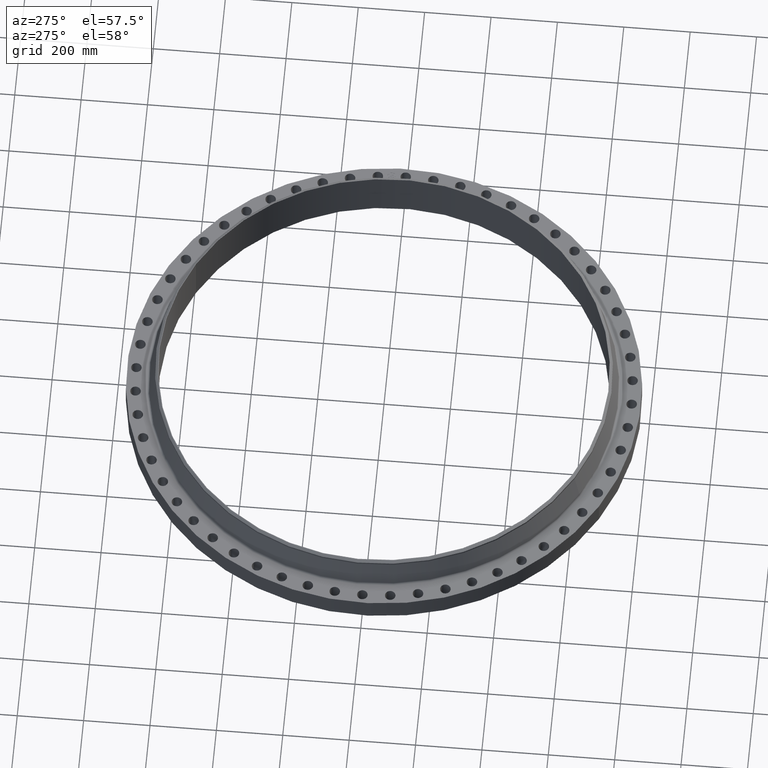
[diagram: clean part render]
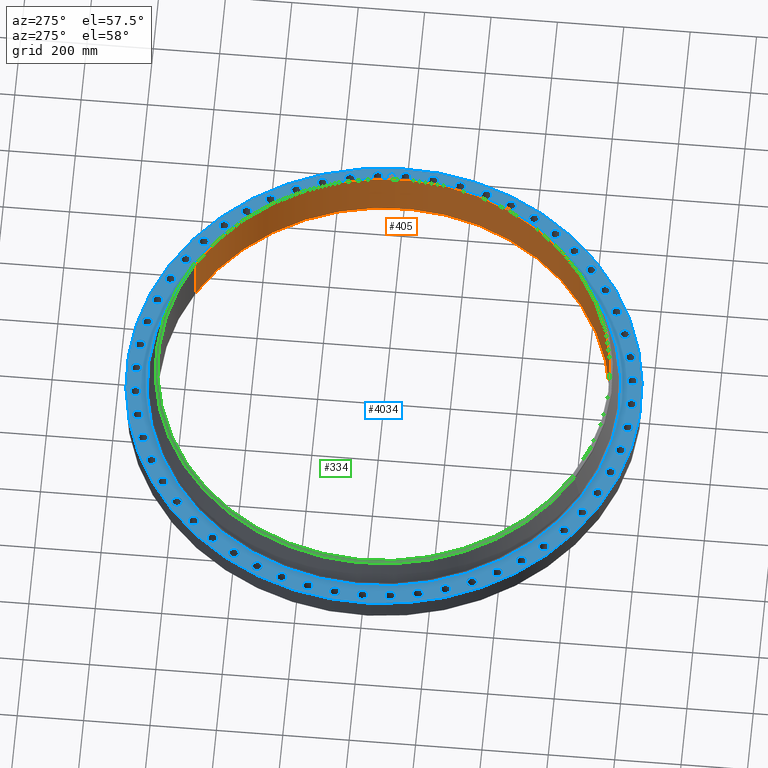
[diagram: same view with three faces highlighted in distinct colors, each labeled with its STEP entity id]
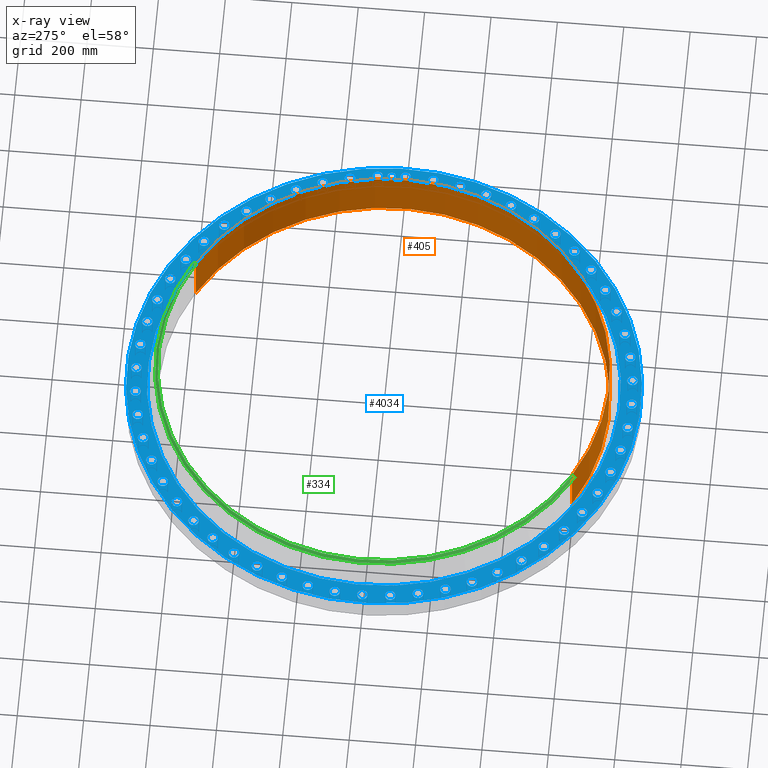
[diagram: x-ray of the same camera — body ghosted, the three highlighted faces saturated]
A machine part, auxiliary view with three faces highlighted in distinct colors.
The next image is the same camera in x-ray (body ghosted, the three faces saturated) — at least one of them is partly hidden behind the body in this view.
Their STEP definitions:

[orange] entity #405 — the highlighted cylindrical surface (partial cylindrical patch) has radius 677.799 mm, axis along (0, 0, -1).
#355=AXIS2_PLACEMENT_3D('Circle Axis2P3D',#353,#354,$) ;
#366=AXIS2_PLACEMENT_3D('Cylinder Axis2P3D',#363,#364,#365) ;
#396=AXIS2_PLACEMENT_3D('Circle Axis2P3D',#394,#395,$) ;
#348=CARTESIAN_POINT('Vertex',(-12.7934704977,-23.4182906641,6.32000000003)) ;
#350=CARTESIAN_POINT('Vertex',(12.7934704977,23.4182906641,6.32000000003)) ;
#353=CARTESIAN_POINT('Axis2P3D Location',(4.47585975282E-015,0.,6.32000000003)) ;
#363=CARTESIAN_POINT('Axis2P3D Location',(0.,0.,3.21000000001)) ;
#368=CARTESIAN_POINT('Line Origine',(-12.7934704977,-23.4182906641,3.16000000001)) ;
#372=CARTESIAN_POINT('Vertex',(-12.7934704977,-23.4182906641,-9.2874089871E-014)) ;
#379=CARTESIAN_POINT('Vertex',(12.7934704977,23.4182906641,-9.2874089871E-014)) ;
#382=CARTESIAN_POINT('Line Origine',(12.7934704977,23.4182906641,3.16000000001)) ;
#394=CARTESIAN_POINT('Axis2P3D Location',(0.,0.,-9.2874089871E-014)) ;
#354=DIRECTION('Axis2P3D Direction',(0.,-0.,-0.0393700787402)) ;
#364=DIRECTION('Axis2P3D Direction',(0.,0.,-0.0393700787402)) ;
#365=DIRECTION('Axis2P3D XDirection',(0.0188750212049,0.0345504945626,0.)) ;
#369=DIRECTION('Vector Direction',(0.,0.,-0.0393700787402)) ;
#383=DIRECTION('Vector Direction',(0.,0.,-0.0393700787402)) ;
#395=DIRECTION('Axis2P3D Direction',(0.,0.,-0.0393700787402)) ;
#370=VECTOR('Line Direction',#369,0.0393700787402) ;
#384=VECTOR('Line Direction',#383,0.0393700787402) ;
#400=ORIENTED_EDGE('',*,*,#386,.T.) ;
#401=ORIENTED_EDGE('',*,*,#398,.T.) ;
#402=ORIENTED_EDGE('',*,*,#374,.F.) ;
#403=ORIENTED_EDGE('',*,*,#357,.F.) ;
#405=ADVANCED_FACE('PartBody',(#404),#367,.F.) ;
#356=CIRCLE('generated circle',#355,26.6850000001) ;
#397=CIRCLE('generated circle',#396,26.6850000001) ;
#367=CYLINDRICAL_SURFACE('generated cylinder',#366,26.6850000001) ;
#357=EDGE_CURVE('',#351,#349,#356,.T.) ;
#374=EDGE_CURVE('',#349,#373,#371,.T.) ;
#386=EDGE_CURVE('',#351,#380,#385,.T.) ;
#398=EDGE_CURVE('',#380,#373,#397,.T.) ;
#399=EDGE_LOOP('',(#400,#401,#402,#403)) ;
#404=FACE_OUTER_BOUND('',#399,.T.) ;
#371=LINE('Line',#368,#370) ;
#385=LINE('Line',#382,#384) ;
#349=VERTEX_POINT('',#348) ;
#351=VERTEX_POINT('',#350) ;
#373=VERTEX_POINT('',#372) ;
#380=VERTEX_POINT('',#379) ;

[blue] entity #4034 — the highlighted planar face has unit normal (0, 0, -1).
#65=AXIS2_PLACEMENT_3D('Circle Axis2P3D',#63,#64,$) ;
#82=AXIS2_PLACEMENT_3D('Circle Axis2P3D',#80,#81,$) ;
#115=AXIS2_PLACEMENT_3D('Circle Axis2P3D',#113,#114,$) ;
#139=AXIS2_PLACEMENT_3D('Circle Axis2P3D',#137,#138,$) ;
#156=AXIS2_PLACEMENT_3D('Circle Axis2P3D',#154,#155,$) ;
#191=AXIS2_PLACEMENT_3D('Circle Axis2P3D',#189,#190,$) ;
#1435=AXIS2_PLACEMENT_3D('Circle Axis2P3D',#1433,#1434,$) ;
#1447=AXIS2_PLACEMENT_3D('Circle Axis2P3D',#1445,#1446,$) ;
#1478=AXIS2_PLACEMENT_3D('Circle Axis2P3D',#1476,#1477,$) ;
#1490=AXIS2_PLACEMENT_3D('Circle Axis2P3D',#1488,#1489,$) ;
#1521=AXIS2_PLACEMENT_3D('Circle Axis2P3D',#1519,#1520,$) ;
#1533=AXIS2_PLACEMENT_3D('Circle Axis2P3D',#1531,#1532,$) ;
#1564=AXIS2_PLACEMENT_3D('Circle Axis2P3D',#1562,#1563,$) ;
#1576=AXIS2_PLACEMENT_3D('Circle Axis2P3D',#1574,#1575,$) ;
#1607=AXIS2_PLACEMENT_3D('Circle Axis2P3D',#1605,#1606,$) ;
#1619=AXIS2_PLACEMENT_3D('Circle Axis2P3D',#1617,#1618,$) ;
#1650=AXIS2_PLACEMENT_3D('Circle Axis2P3D',#1648,#1649,$) ;
#1662=AXIS2_PLACEMENT_3D('Circle Axis2P3D',#1660,#1661,$) ;
#1693=AXIS2_PLACEMENT_3D('Circle Axis2P3D',#1691,#1692,$) ;
#1705=AXIS2_PLACEMENT_3D('Circle Axis2P3D',#1703,#1704,$) ;
#1736=AXIS2_PLACEMENT_3D('Circle Axis2P3D',#1734,#1735,$) ;
#1748=AXIS2_PLACEMENT_3D('Circle Axis2P3D',#1746,#1747,$) ;
#1779=AXIS2_PLACEMENT_3D('Circle Axis2P3D',#1777,#1778,$) ;
#1791=AXIS2_PLACEMENT_3D('Circle Axis2P3D',#1789,#1790,$) ;
#1822=AXIS2_PLACEMENT_3D('Circle Axis2P3D',#1820,#1821,$) ;
#1834=AXIS2_PLACEMENT_3D('Circle Axis2P3D',#1832,#1833,$) ;
#1865=AXIS2_PLACEMENT_3D('Circle Axis2P3D',#1863,#1864,$) ;
#1877=AXIS2_PLACEMENT_3D('Circle Axis2P3D',#1875,#1876,$) ;
#1908=AXIS2_PLACEMENT_3D('Circle Axis2P3D',#1906,#1907,$) ;
#1920=AXIS2_PLACEMENT_3D('Circle Axis2P3D',#1918,#1919,$) ;
#1951=AXIS2_PLACEMENT_3D('Circle Axis2P3D',#1949,#1950,$) ;
#1963=AXIS2_PLACEMENT_3D('Circle Axis2P3D',#1961,#1962,$) ;
#1994=AXIS2_PLACEMENT_3D('Circle Axis2P3D',#1992,#1993,$) ;
#2006=AXIS2_PLACEMENT_3D('Circle Axis2P3D',#2004,#2005,$) ;
#2037=AXIS2_PLACEMENT_3D('Circle Axis2P3D',#2035,#2036,$) ;
#2049=AXIS2_PLACEMENT_3D('Circle Axis2P3D',#2047,#2048,$) ;
#2080=AXIS2_PLACEMENT_3D('Circle Axis2P3D',#2078,#2079,$) ;
#2092=AXIS2_PLACEMENT_3D('Circle Axis2P3D',#2090,#2091,$) ;
#2123=AXIS2_PLACEMENT_3D('Circle Axis2P3D',#2121,#2122,$) ;
#2135=AXIS2_PLACEMENT_3D('Circle Axis2P3D',#2133,#2134,$) ;
#2166=AXIS2_PLACEMENT_3D('Circle Axis2P3D',#2164,#2165,$) ;
#2178=AXIS2_PLACEMENT_3D('Circle Axis2P3D',#2176,#2177,$) ;
#2209=AXIS2_PLACEMENT_3D('Circle Axis2P3D',#2207,#2208,$) ;
#2221=AXIS2_PLACEMENT_3D('Circle Axis2P3D',#2219,#2220,$) ;
#2252=AXIS2_PLACEMENT_3D('Circle Axis2P3D',#2250,#2251,$) ;
#2264=AXIS2_PLACEMENT_3D('Circle Axis2P3D',#2262,#2263,$) ;
#2295=AXIS2_PLACEMENT_3D('Circle Axis2P3D',#2293,#2294,$) ;
#2307=AXIS2_PLACEMENT_3D('Circle Axis2P3D',#2305,#2306,$) ;
#2338=AXIS2_PLACEMENT_3D('Circle Axis2P3D',#2336,#2337,$) ;
#2350=AXIS2_PLACEMENT_3D('Circle Axis2P3D',#2348,#2349,$) ;
#2381=AXIS2_PLACEMENT_3D('Circle Axis2P3D',#2379,#2380,$) ;
#2393=AXIS2_PLACEMENT_3D('Circle Axis2P3D',#2391,#2392,$) ;
#2424=AXIS2_PLACEMENT_3D('Circle Axis2P3D',#2422,#2423,$) ;
#2436=AXIS2_PLACEMENT_3D('Circle Axis2P3D',#2434,#2435,$) ;
#2467=AXIS2_PLACEMENT_3D('Circle Axis2P3D',#2465,#2466,$) ;
#2479=AXIS2_PLACEMENT_3D('Circle Axis2P3D',#2477,#2478,$) ;
#2510=AXIS2_PLACEMENT_3D('Circle Axis2P3D',#2508,#2509,$) ;
#2522=AXIS2_PLACEMENT_3D('Circle Axis2P3D',#2520,#2521,$) ;
#2553=AXIS2_PLACEMENT_3D('Circle Axis2P3D',#2551,#2552,$) ;
#2565=AXIS2_PLACEMENT_3D('Circle Axis2P3D',#2563,#2564,$) ;
#2596=AXIS2_PLACEMENT_3D('Circle Axis2P3D',#2594,#2595,$) ;
#2608=AXIS2_PLACEMENT_3D('Circle Axis2P3D',#2606,#2607,$) ;
#2639=AXIS2_PLACEMENT_3D('Circle Axis2P3D',#2637,#2638,$) ;
#2651=AXIS2_PLACEMENT_3D('Circle Axis2P3D',#2649,#2650,$) ;
#2682=AXIS2_PLACEMENT_3D('Circle Axis2P3D',#2680,#2681,$) ;
#2694=AXIS2_PLACEMENT_3D('Circle Axis2P3D',#2692,#2693,$) ;
#2725=AXIS2_PLACEMENT_3D('Circle Axis2P3D',#2723,#2724,$) ;
#2737=AXIS2_PLACEMENT_3D('Circle Axis2P3D',#2735,#2736,$) ;
#2768=AXIS2_PLACEMENT_3D('Circle Axis2P3D',#2766,#2767,$) ;
#2780=AXIS2_PLACEMENT_3D('Circle Axis2P3D',#2778,#2779,$) ;
#2811=AXIS2_PLACEMENT_3D('Circle Axis2P3D',#2809,#2810,$) ;
#2823=AXIS2_PLACEMENT_3D('Circle Axis2P3D',#2821,#2822,$) ;
#2854=AXIS2_PLACEMENT_3D('Circle Axis2P3D',#2852,#2853,$) ;
#2866=AXIS2_PLACEMENT_3D('Circle Axis2P3D',#2864,#2865,$) ;
#2897=AXIS2_PLACEMENT_3D('Circle Axis2P3D',#2895,#2896,$) ;
#2909=AXIS2_PLACEMENT_3D('Circle Axis2P3D',#2907,#2908,$) ;
#2940=AXIS2_PLACEMENT_3D('Circle Axis2P3D',#2938,#2939,$) ;
#2952=AXIS2_PLACEMENT_3D('Circle Axis2P3D',#2950,#2951,$) ;
#2983=AXIS2_PLACEMENT_3D('Circle Axis2P3D',#2981,#2982,$) ;
#2995=AXIS2_PLACEMENT_3D('Circle Axis2P3D',#2993,#2994,$) ;
#3026=AXIS2_PLACEMENT_3D('Circle Axis2P3D',#3024,#3025,$) ;
#3038=AXIS2_PLACEMENT_3D('Circle Axis2P3D',#3036,#3037,$) ;
#3069=AXIS2_PLACEMENT_3D('Circle Axis2P3D',#3067,#3068,$) ;
#3081=AXIS2_PLACEMENT_3D('Circle Axis2P3D',#3079,#3080,$) ;
#3112=AXIS2_PLACEMENT_3D('Circle Axis2P3D',#3110,#3111,$) ;
#3124=AXIS2_PLACEMENT_3D('Circle Axis2P3D',#3122,#3123,$) ;
#3155=AXIS2_PLACEMENT_3D('Circle Axis2P3D',#3153,#3154,$) ;
#3167=AXIS2_PLACEMENT_3D('Circle Axis2P3D',#3165,#3166,$) ;
#3198=AXIS2_PLACEMENT_3D('Circle Axis2P3D',#3196,#3197,$) ;
#3210=AXIS2_PLACEMENT_3D('Circle Axis2P3D',#3208,#3209,$) ;
#3241=AXIS2_PLACEMENT_3D('Circle Axis2P3D',#3239,#3240,$) ;
#3253=AXIS2_PLACEMENT_3D('Circle Axis2P3D',#3251,#3252,$) ;
#3284=AXIS2_PLACEMENT_3D('Circle Axis2P3D',#3282,#3283,$) ;
#3296=AXIS2_PLACEMENT_3D('Circle Axis2P3D',#3294,#3295,$) ;
#3327=AXIS2_PLACEMENT_3D('Circle Axis2P3D',#3325,#3326,$) ;
#3339=AXIS2_PLACEMENT_3D('Circle Axis2P3D',#3337,#3338,$) ;
#3370=AXIS2_PLACEMENT_3D('Circle Axis2P3D',#3368,#3369,$) ;
#3382=AXIS2_PLACEMENT_3D('Circle Axis2P3D',#3380,#3381,$) ;
#3413=AXIS2_PLACEMENT_3D('Circle Axis2P3D',#3411,#3412,$) ;
#3425=AXIS2_PLACEMENT_3D('Circle Axis2P3D',#3423,#3424,$) ;
#3456=AXIS2_PLACEMENT_3D('Circle Axis2P3D',#3454,#3455,$) ;
#3468=AXIS2_PLACEMENT_3D('Circle Axis2P3D',#3466,#3467,$) ;
#3499=AXIS2_PLACEMENT_3D('Circle Axis2P3D',#3497,#3498,$) ;
#3511=AXIS2_PLACEMENT_3D('Circle Axis2P3D',#3509,#3510,$) ;
#3542=AXIS2_PLACEMENT_3D('Circle Axis2P3D',#3540,#3541,$) ;
#3554=AXIS2_PLACEMENT_3D('Circle Axis2P3D',#3552,#3553,$) ;
#3585=AXIS2_PLACEMENT_3D('Circle Axis2P3D',#3583,#3584,$) ;
#3597=AXIS2_PLACEMENT_3D('Circle Axis2P3D',#3595,#3596,$) ;
#3628=AXIS2_PLACEMENT_3D('Circle Axis2P3D',#3626,#3627,$) ;
#3640=AXIS2_PLACEMENT_3D('Circle Axis2P3D',#3638,#3639,$) ;
#3671=AXIS2_PLACEMENT_3D('Circle Axis2P3D',#3669,#3670,$) ;
#3683=AXIS2_PLACEMENT_3D('Circle Axis2P3D',#3681,#3682,$) ;
#3714=AXIS2_PLACEMENT_3D('Circle Axis2P3D',#3712,#3713,$) ;
#3726=AXIS2_PLACEMENT_3D('Circle Axis2P3D',#3724,#3725,$) ;
#3757=AXIS2_PLACEMENT_3D('Circle Axis2P3D',#3755,#3756,$) ;
#3769=AXIS2_PLACEMENT_3D('Circle Axis2P3D',#3767,#3768,$) ;
#3782=AXIS2_PLACEMENT_3D('Plane Axis2P3D',#3779,#3780,#3781) ;
#4018=AXIS2_PLACEMENT_3D('Circle Axis2P3D',#4016,#4017,$) ;
#4027=AXIS2_PLACEMENT_3D('Circle Axis2P3D',#4025,#4026,$) ;
#46=CARTESIAN_POINT('Vertex',(28.8265108989,0.299640961629,2.75000000001)) ;
#60=CARTESIAN_POINT('Vertex',(29.9234891013,-0.299640961629,2.75000000001)) ;
#63=CARTESIAN_POINT('Axis2P3D Location',(29.3750000001,0.,2.75000000001)) ;
#80=CARTESIAN_POINT('Axis2P3D Location',(29.3750000001,0.,2.75000000001)) ;
#110=CARTESIAN_POINT('Vertex',(-14.6224789275,-26.7662681378,2.75000000001)) ;
#113=CARTESIAN_POINT('Axis2P3D Location',(0.,0.,2.75000000001)) ;
#117=CARTESIAN_POINT('Vertex',(14.6224789275,26.7662681378,2.75000000001)) ;
#137=CARTESIAN_POINT('Axis2P3D Location',(0.,0.,2.75000000001)) ;
#154=CARTESIAN_POINT('Axis2P3D Location',(0.,0.,2.75000000001)) ;
#158=CARTESIAN_POINT('Vertex',(13.4270979136,24.578137869,2.75000000001)) ;
#160=CARTESIAN_POINT('Vertex',(-13.4270979136,-24.578137869,2.75000000001)) ;
#189=CARTESIAN_POINT('Axis2P3D Location',(0.,0.,2.75000000001)) ;
#1423=CARTESIAN_POINT('Vertex',(-28.6788049922,2.92978830853,2.75000000001)) ;
#1430=CARTESIAN_POINT('Vertex',(-29.7017873393,3.64812466256,2.75000000001)) ;
#1433=CARTESIAN_POINT('Axis2P3D Location',(-29.1902961657,3.28895648555,2.75000000001)) ;
#1445=CARTESIAN_POINT('Axis2P3D Location',(-29.1902961657,3.28895648555,2.75000000001)) ;
#1466=CARTESIAN_POINT('Vertex',(28.1704464728,-6.12237379081,2.75000000001)) ;
#1473=CARTESIAN_POINT('Vertex',(29.1065683681,-6.95073107918,2.75000000001)) ;
#1476=CARTESIAN_POINT('Axis2P3D Location',(28.6385074205,-6.53655243499,2.75000000001)) ;
#1488=CARTESIAN_POINT('Axis2P3D Location',(28.6385074205,-6.53655243499,2.75000000001)) ;
#1509=CARTESIAN_POINT('Vertex',(-28.1704464728,6.12237379081,2.75000000001)) ;
#1516=CARTESIAN_POINT('Vertex',(-29.1065683681,6.95073107918,2.75000000001)) ;
#1519=CARTESIAN_POINT('Axis2P3D Location',(-28.6385074205,6.53655243499,2.75000000001)) ;
#1531=CARTESIAN_POINT('Axis2P3D Location',(-28.6385074205,6.53655243499,2.75000000001)) ;
#1552=CARTESIAN_POINT('Vertex',(27.3078282442,-9.23796687038,2.75000000001)) ;
#1559=CARTESIAN_POINT('Vertex',(28.1453174117,-10.1659280196,2.75000000001)) ;
#1562=CARTESIAN_POINT('Axis2P3D Location',(27.7265728279,-9.70194744497,2.75000000001)) ;
#1574=CARTESIAN_POINT('Axis2P3D Location',(27.7265728279,-9.70194744497,2.75000000001)) ;
#1595=CARTESIAN_POINT('Vertex',(-27.3078282442,9.23796687038,2.75000000001)) ;
#1602=CARTESIAN_POINT('Vertex',(-28.1453174117,10.1659280196,2.75000000001)) ;
#1605=CARTESIAN_POINT('Axis2P3D Location',(-27.7265728279,9.70194744497,2.75000000001)) ;
#1617=CARTESIAN_POINT('Axis2P3D Location',(-27.7265728279,9.70194744497,2.75000000001)) ;
#1638=CARTESIAN_POINT('Vertex',(26.101798231,-12.2373871566,2.75000000001)) ;
#1645=CARTESIAN_POINT('Vertex',(26.8301227585,-13.2532825167,2.75000000001)) ;
#1648=CARTESIAN_POINT('Axis2P3D Location',(26.4659604947,-12.7453348366,2.75000000001)) ;
#1660=CARTESIAN_POINT('Axis2P3D Location',(26.4659604947,-12.7453348366,2.75000000001)) ;
#1681=CARTESIAN_POINT('Vertex',(-26.101798231,12.2373871566,2.75000000001)) ;
#1688=CARTESIAN_POINT('Vertex',(-26.8301227585,13.2532825167,2.75000000001)) ;
#1691=CARTESIAN_POINT('Axis2P3D Location',(-26.4659604947,12.7453348366,2.75000000001)) ;
#1703=CARTESIAN_POINT('Axis2P3D Location',(-26.4659604947,12.7453348366,2.75000000001)) ;
#1724=CARTESIAN_POINT('Vertex',(24.5675229605,-15.082915199,2.75000000001)) ;
#1731=CARTESIAN_POINT('Vertex',(25.1775237444,-16.1739692964,2.75000000001)) ;
#1734=CARTESIAN_POINT('Axis2P3D Location',(24.8725233524,-15.6284422477,2.75000000001)) ;
#1746=CARTESIAN_POINT('Axis2P3D Location',(24.8725233524,-15.6284422477,2.75000000001)) ;
#1767=CARTESIAN_POINT('Vertex',(-24.5675229605,15.082915199,2.75000000001)) ;
#1774=CARTESIAN_POINT('Vertex',(-25.1775237444,16.1739692964,2.75000000001)) ;
#1777=CARTESIAN_POINT('Axis2P3D Location',(-24.8725233524,15.6284422477,2.75000000001)) ;
#1789=CARTESIAN_POINT('Axis2P3D Location',(-24.8725233524,15.6284422477,2.75000000001)) ;
#1810=CARTESIAN_POINT('Vertex',(22.7242968343,-17.7387668314,2.75000000001)) ;
#1817=CARTESIAN_POINT('Vertex',(23.2083027609,-18.8912590279,2.75000000001)) ;
#1820=CARTESIAN_POINT('Axis2P3D Location',(22.9662997976,-18.3150129297,2.75000000001)) ;
#1832=CARTESIAN_POINT('Axis2P3D Location',(22.9662997976,-18.3150129297,2.75000000001)) ;
#1853=CARTESIAN_POINT('Vertex',(-22.7242968343,17.7387668314,2.75000000001)) ;
#1860=CARTESIAN_POINT('Vertex',(-23.2083027609,18.8912590279,2.75000000001)) ;
#1863=CARTESIAN_POINT('Axis2P3D Location',(-22.9662997976,18.3150129297,2.75000000001)) ;
#1875=CARTESIAN_POINT('Axis2P3D Location',(-22.9662997976,18.3150129297,2.75000000001)) ;
#1896=CARTESIAN_POINT('Vertex',(20.5952994905,-20.1715431787,2.75000000001)) ;
#1903=CARTESIAN_POINT('Vertex',(20.9472239044,-21.3709802162,2.75000000001)) ;
#1906=CARTESIAN_POINT('Axis2P3D Location',(20.7712616974,-20.7712616974,2.75000000001)) ;
#1918=CARTESIAN_POINT('Axis2P3D Location',(20.7712616974,-20.7712616974,2.75000000001)) ;
#1939=CARTESIAN_POINT('Vertex',(-20.5952994905,20.1715431787,2.75000000001)) ;
#1946=CARTESIAN_POINT('Vertex',(-20.9472239044,21.3709802162,2.75000000001)) ;
#1949=CARTESIAN_POINT('Axis2P3D Location',(-20.7712616974,20.7712616974,2.75000000001)) ;
#1961=CARTESIAN_POINT('Axis2P3D Location',(-20.7712616974,20.7712616974,2.75000000001)) ;
#1982=CARTESIAN_POINT('Vertex',(18.2073043059,-22.3506506667,2.75000000001)) ;
#1989=CARTESIAN_POINT('Vertex',(18.4227215535,-23.5819489285,2.75000000001)) ;
#1992=CARTESIAN_POINT('Axis2P3D Location',(18.3150129297,-22.9662997976,2.75000000001)) ;
#2004=CARTESIAN_POINT('Axis2P3D Location',(18.3150129297,-22.9662997976,2.75000000001)) ;
#2025=CARTESIAN_POINT('Vertex',(-18.2073043059,22.3506506667,2.75000000001)) ;
#2032=CARTESIAN_POINT('Vertex',(-18.4227215535,23.5819489285,2.75000000001)) ;
#2035=CARTESIAN_POINT('Axis2P3D Location',(-18.3150129297,22.9662997976,2.75000000001)) ;
#2047=CARTESIAN_POINT('Axis2P3D Location',(-18.3150129297,22.9662997976,2.75000000001)) ;
#2068=CARTESIAN_POINT('Vertex',(15.5903417055,-24.2486857544,2.75000000001)) ;
#2075=CARTESIAN_POINT('Vertex',(15.6665427899,-25.4963609504,2.75000000001)) ;
#2078=CARTESIAN_POINT('Axis2P3D Location',(15.6284422477,-24.8725233524,2.75000000001)) ;
#2090=CARTESIAN_POINT('Axis2P3D Location',(15.6284422477,-24.8725233524,2.75000000001)) ;
#2111=CARTESIAN_POINT('Vertex',(-15.5903417055,24.2486857544,2.75000000001)) ;
#2118=CARTESIAN_POINT('Vertex',(-15.6665427899,25.4963609504,2.75000000001)) ;
#2121=CARTESIAN_POINT('Axis2P3D Location',(-15.6284422477,24.8725233524,2.75000000001)) ;
#2133=CARTESIAN_POINT('Axis2P3D Location',(-15.6284422477,24.8725233524,2.75000000001)) ;
#2154=CARTESIAN_POINT('Vertex',(12.7773215125,-25.8417795494,2.75000000001)) ;
#2161=CARTESIAN_POINT('Vertex',(12.7133481607,-27.0901414401,2.75000000001)) ;
#2164=CARTESIAN_POINT('Axis2P3D Location',(12.7453348366,-26.4659604947,2.75000000001)) ;
#2176=CARTESIAN_POINT('Axis2P3D Location',(12.7453348366,-26.4659604947,2.75000000001)) ;
#2197=CARTESIAN_POINT('Vertex',(-12.7773215125,25.8417795494,2.75000000001)) ;
#2204=CARTESIAN_POINT('Vertex',(-12.7133481607,27.0901414401,2.75000000001)) ;
#2207=CARTESIAN_POINT('Axis2P3D Location',(-12.7453348366,26.4659604947,2.75000000001)) ;
#2219=CARTESIAN_POINT('Axis2P3D Location',(-12.7453348366,26.4659604947,2.75000000001)) ;
#2240=CARTESIAN_POINT('Vertex',(9.8036190879,-27.1098979727,2.75000000001)) ;
#2247=CARTESIAN_POINT('Vertex',(9.60027580204,-28.3432476831,2.75000000001)) ;
#2250=CARTESIAN_POINT('Axis2P3D Location',(9.70194744497,-27.7265728279,2.75000000001)) ;
#2262=CARTESIAN_POINT('Axis2P3D Location',(9.70194744497,-27.7265728279,2.75000000001)) ;
#2283=CARTESIAN_POINT('Vertex',(-9.8036190879,27.1098979727,2.75000000001)) ;
#2290=CARTESIAN_POINT('Vertex',(-9.60027580204,28.3432476831,2.75000000001)) ;
#2293=CARTESIAN_POINT('Axis2P3D Location',(-9.70194744497,27.7265728279,2.75000000001)) ;
#2305=CARTESIAN_POINT('Axis2P3D Location',(-9.70194744497,27.7265728279,2.75000000001)) ;
#2326=CARTESIAN_POINT('Vertex',(6.70663046506,-28.0370936996,2.75000000001)) ;
#2333=CARTESIAN_POINT('Vertex',(6.36647440493,-29.2399211414,2.75000000001)) ;
#2336=CARTESIAN_POINT('Axis2P3D Location',(6.53655243499,-28.6385074205,2.75000000001)) ;
#2348=CARTESIAN_POINT('Axis2P3D Location',(6.53655243499,-28.6385074205,2.75000000001)) ;
#2369=CARTESIAN_POINT('Vertex',(-6.70663046506,28.0370936996,2.75000000001)) ;
#2376=CARTESIAN_POINT('Vertex',(-6.36647440493,29.2399211414,2.75000000001)) ;
#2379=CARTESIAN_POINT('Axis2P3D Location',(-6.53655243499,28.6385074205,2.75000000001)) ;
#2391=CARTESIAN_POINT('Axis2P3D Location',(-6.53655243499,28.6385074205,2.75000000001)) ;
#2412=CARTESIAN_POINT('Vertex',(3.52530207284,-28.6117067056,2.75000000001)) ;
#2419=CARTESIAN_POINT('Vertex',(3.05261089826,-29.7688856259,2.75000000001)) ;
#2422=CARTESIAN_POINT('Axis2P3D Location',(3.28895648555,-29.1902961657,2.75000000001)) ;
#2434=CARTESIAN_POINT('Axis2P3D Location',(3.28895648555,-29.1902961657,2.75000000001)) ;
#2455=CARTESIAN_POINT('Vertex',(-3.52530207284,28.6117067056,2.75000000001)) ;
#2462=CARTESIAN_POINT('Vertex',(-3.05261089826,29.7688856259,2.75000000001)) ;
#2465=CARTESIAN_POINT('Axis2P3D Location',(-3.28895648555,29.1902961657,2.75000000001)) ;
#2477=CARTESIAN_POINT('Axis2P3D Location',(-3.28895648555,29.1902961657,2.75000000001)) ;
#2498=CARTESIAN_POINT('Vertex',(0.299640961629,-28.8265108989,2.75000000001)) ;
#2505=CARTESIAN_POINT('Vertex',(-0.299640961629,-29.9234891013,2.75000000001)) ;
#2508=CARTESIAN_POINT('Axis2P3D Location',(8.32126025595E-015,-29.3750000001,2.75000000001)) ;
#2520=CARTESIAN_POINT('Axis2P3D Location',(8.32126025595E-015,-29.3750000001,2.75000000001)) ;
#2541=CARTESIAN_POINT('Vertex',(-0.299640961629,28.8265108989,2.75000000001)) ;
#2548=CARTESIAN_POINT('Vertex',(0.299640961629,29.9234891013,2.75000000001)) ;
#2551=CARTESIAN_POINT('Axis2P3D Location',(-5.39609995876E-015,29.3750000001,2.75000000001)) ;
#2563=CARTESIAN_POINT('Axis2P3D Location',(-5.39609995876E-015,29.3750000001,2.75000000001)) ;
#2584=CARTESIAN_POINT('Vertex',(-2.92978830853,-28.6788049922,2.75000000001)) ;
#2591=CARTESIAN_POINT('Vertex',(-3.64812466256,-29.7017873393,2.75000000001)) ;
#2594=CARTESIAN_POINT('Axis2P3D Location',(-3.28895648555,-29.1902961657,2.75000000001)) ;
#2606=CARTESIAN_POINT('Axis2P3D Location',(-3.28895648555,-29.1902961657,2.75000000001)) ;
#2627=CARTESIAN_POINT('Vertex',(2.92978830853,28.6788049922,2.75000000001)) ;
#2634=CARTESIAN_POINT('Vertex',(3.64812466256,29.7017873393,2.75000000001)) ;
#2637=CARTESIAN_POINT('Axis2P3D Location',(3.28895648555,29.1902961657,2.75000000001)) ;
#2649=CARTESIAN_POINT('Axis2P3D Location',(3.28895648555,29.1902961657,2.75000000001)) ;
#2670=CARTESIAN_POINT('Vertex',(-6.12237379081,-28.1704464728,2.75000000001)) ;
#2677=CARTESIAN_POINT('Vertex',(-6.95073107918,-29.1065683681,2.75000000001)) ;
#2680=CARTESIAN_POINT('Axis2P3D Location',(-6.53655243499,-28.6385074205,2.75000000001)) ;
#2692=CARTESIAN_POINT('Axis2P3D Location',(-6.53655243499,-28.6385074205,2.75000000001)) ;
#2713=CARTESIAN_POINT('Vertex',(6.12237379081,28.1704464728,2.75000000001)) ;
#2720=CARTESIAN_POINT('Vertex',(6.95073107918,29.1065683681,2.75000000001)) ;
#2723=CARTESIAN_POINT('Axis2P3D Location',(6.53655243499,28.6385074205,2.75000000001)) ;
#2735=CARTESIAN_POINT('Axis2P3D Location',(6.53655243499,28.6385074205,2.75000000001)) ;
#2756=CARTESIAN_POINT('Vertex',(-9.23796687038,-27.3078282442,2.75000000001)) ;
#2763=CARTESIAN_POINT('Vertex',(-10.1659280196,-28.1453174117,2.75000000001)) ;
#2766=CARTESIAN_POINT('Axis2P3D Location',(-9.70194744497,-27.7265728279,2.75000000001)) ;
#2778=CARTESIAN_POINT('Axis2P3D Location',(-9.70194744497,-27.7265728279,2.75000000001)) ;
#2799=CARTESIAN_POINT('Vertex',(9.23796687038,27.3078282442,2.75000000001)) ;
#2806=CARTESIAN_POINT('Vertex',(10.1659280196,28.1453174117,2.75000000001)) ;
#2809=CARTESIAN_POINT('Axis2P3D Location',(9.70194744497,27.7265728279,2.75000000001)) ;
#2821=CARTESIAN_POINT('Axis2P3D Location',(9.70194744497,27.7265728279,2.75000000001)) ;
#2842=CARTESIAN_POINT('Vertex',(-12.2373871566,-26.101798231,2.75000000001)) ;
#2849=CARTESIAN_POINT('Vertex',(-13.2532825167,-26.8301227585,2.75000000001)) ;
#2852=CARTESIAN_POINT('Axis2P3D Location',(-12.7453348366,-26.4659604947,2.75000000001)) ;
#2864=CARTESIAN_POINT('Axis2P3D Location',(-12.7453348366,-26.4659604947,2.75000000001)) ;
#2885=CARTESIAN_POINT('Vertex',(12.2373871566,26.101798231,2.75000000001)) ;
#2892=CARTESIAN_POINT('Vertex',(13.2532825167,26.8301227585,2.75000000001)) ;
#2895=CARTESIAN_POINT('Axis2P3D Location',(12.7453348366,26.4659604947,2.75000000001)) ;
#2907=CARTESIAN_POINT('Axis2P3D Location',(12.7453348366,26.4659604947,2.75000000001)) ;
#2928=CARTESIAN_POINT('Vertex',(-15.082915199,-24.5675229605,2.75000000001)) ;
#2935=CARTESIAN_POINT('Vertex',(-16.1739692964,-25.1775237444,2.75000000001)) ;
#2938=CARTESIAN_POINT('Axis2P3D Location',(-15.6284422477,-24.8725233524,2.75000000001)) ;
#2950=CARTESIAN_POINT('Axis2P3D Location',(-15.6284422477,-24.8725233524,2.75000000001)) ;
#2971=CARTESIAN_POINT('Vertex',(15.082915199,24.5675229605,2.75000000001)) ;
#2978=CARTESIAN_POINT('Vertex',(16.1739692964,25.1775237444,2.75000000001)) ;
#2981=CARTESIAN_POINT('Axis2P3D Location',(15.6284422477,24.8725233524,2.75000000001)) ;
#2993=CARTESIAN_POINT('Axis2P3D Location',(15.6284422477,24.8725233524,2.75000000001)) ;
#3014=CARTESIAN_POINT('Vertex',(-17.7387668314,-22.7242968343,2.75000000001)) ;
#3021=CARTESIAN_POINT('Vertex',(-18.8912590279,-23.2083027609,2.75000000001)) ;
#3024=CARTESIAN_POINT('Axis2P3D Location',(-18.3150129297,-22.9662997976,2.75000000001)) ;
#3036=CARTESIAN_POINT('Axis2P3D Location',(-18.3150129297,-22.9662997976,2.75000000001)) ;
#3057=CARTESIAN_POINT('Vertex',(17.7387668314,22.7242968343,2.75000000001)) ;
#3064=CARTESIAN_POINT('Vertex',(18.8912590279,23.2083027609,2.75000000001)) ;
#3067=CARTESIAN_POINT('Axis2P3D Location',(18.3150129297,22.9662997976,2.75000000001)) ;
#3079=CARTESIAN_POINT('Axis2P3D Location',(18.3150129297,22.9662997976,2.75000000001)) ;
#3100=CARTESIAN_POINT('Vertex',(-20.1715431787,-20.5952994905,2.75000000001)) ;
#3107=CARTESIAN_POINT('Vertex',(-21.3709802162,-20.9472239044,2.75000000001)) ;
#3110=CARTESIAN_POINT('Axis2P3D Location',(-20.7712616974,-20.7712616974,2.75000000001)) ;
#3122=CARTESIAN_POINT('Axis2P3D Location',(-20.7712616974,-20.7712616974,2.75000000001)) ;
#3143=CARTESIAN_POINT('Vertex',(20.1715431787,20.5952994905,2.75000000001)) ;
#3150=CARTESIAN_POINT('Vertex',(21.3709802162,20.9472239044,2.75000000001)) ;
#3153=CARTESIAN_POINT('Axis2P3D Location',(20.7712616974,20.7712616974,2.75000000001)) ;
#3165=CARTESIAN_POINT('Axis2P3D Location',(20.7712616974,20.7712616974,2.75000000001)) ;
#3186=CARTESIAN_POINT('Vertex',(-22.3506506667,-18.2073043059,2.75000000001)) ;
#3193=CARTESIAN_POINT('Vertex',(-23.5819489285,-18.4227215535,2.75000000001)) ;
#3196=CARTESIAN_POINT('Axis2P3D Location',(-22.9662997976,-18.3150129297,2.75000000001)) ;
#3208=CARTESIAN_POINT('Axis2P3D Location',(-22.9662997976,-18.3150129297,2.75000000001)) ;
#3229=CARTESIAN_POINT('Vertex',(22.3506506667,18.2073043059,2.75000000001)) ;
#3236=CARTESIAN_POINT('Vertex',(23.5819489285,18.4227215535,2.75000000001)) ;
#3239=CARTESIAN_POINT('Axis2P3D Location',(22.9662997976,18.3150129297,2.75000000001)) ;
#3251=CARTESIAN_POINT('Axis2P3D Location',(22.9662997976,18.3150129297,2.75000000001)) ;
#3272=CARTESIAN_POINT('Vertex',(-24.2486857544,-15.5903417055,2.75000000001)) ;
#3279=CARTESIAN_POINT('Vertex',(-25.4963609504,-15.6665427899,2.75000000001)) ;
#3282=CARTESIAN_POINT('Axis2P3D Location',(-24.8725233524,-15.6284422477,2.75000000001)) ;
#3294=CARTESIAN_POINT('Axis2P3D Location',(-24.8725233524,-15.6284422477,2.75000000001)) ;
#3315=CARTESIAN_POINT('Vertex',(24.2486857544,15.5903417055,2.75000000001)) ;
#3322=CARTESIAN_POINT('Vertex',(25.4963609504,15.6665427899,2.75000000001)) ;
#3325=CARTESIAN_POINT('Axis2P3D Location',(24.8725233524,15.6284422477,2.75000000001)) ;
#3337=CARTESIAN_POINT('Axis2P3D Location',(24.8725233524,15.6284422477,2.75000000001)) ;
#3358=CARTESIAN_POINT('Vertex',(-25.8417795494,-12.7773215125,2.75000000001)) ;
#3365=CARTESIAN_POINT('Vertex',(-27.0901414401,-12.7133481607,2.75000000001)) ;
#3368=CARTESIAN_POINT('Axis2P3D Location',(-26.4659604947,-12.7453348366,2.75000000001)) ;
#3380=CARTESIAN_POINT('Axis2P3D Location',(-26.4659604947,-12.7453348366,2.75000000001)) ;
#3401=CARTESIAN_POINT('Vertex',(25.8417795494,12.7773215125,2.75000000001)) ;
#3408=CARTESIAN_POINT('Vertex',(27.0901414401,12.7133481607,2.75000000001)) ;
#3411=CARTESIAN_POINT('Axis2P3D Location',(26.4659604947,12.7453348366,2.75000000001)) ;
#3423=CARTESIAN_POINT('Axis2P3D Location',(26.4659604947,12.7453348366,2.75000000001)) ;
#3444=CARTESIAN_POINT('Vertex',(-27.1098979727,-9.8036190879,2.75000000001)) ;
#3451=CARTESIAN_POINT('Vertex',(-28.3432476831,-9.60027580204,2.75000000001)) ;
#3454=CARTESIAN_POINT('Axis2P3D Location',(-27.7265728279,-9.70194744497,2.75000000001)) ;
#3466=CARTESIAN_POINT('Axis2P3D Location',(-27.7265728279,-9.70194744497,2.75000000001)) ;
#3487=CARTESIAN_POINT('Vertex',(27.1098979727,9.8036190879,2.75000000001)) ;
#3494=CARTESIAN_POINT('Vertex',(28.3432476831,9.60027580204,2.75000000001)) ;
#3497=CARTESIAN_POINT('Axis2P3D Location',(27.7265728279,9.70194744497,2.75000000001)) ;
#3509=CARTESIAN_POINT('Axis2P3D Location',(27.7265728279,9.70194744497,2.75000000001)) ;
#3530=CARTESIAN_POINT('Vertex',(-28.0370936996,-6.70663046506,2.75000000001)) ;
#3537=CARTESIAN_POINT('Vertex',(-29.2399211414,-6.36647440493,2.75000000001)) ;
#3540=CARTESIAN_POINT('Axis2P3D Location',(-28.6385074205,-6.53655243499,2.75000000001)) ;
#3552=CARTESIAN_POINT('Axis2P3D Location',(-28.6385074205,-6.53655243499,2.75000000001)) ;
#3573=CARTESIAN_POINT('Vertex',(28.0370936996,6.70663046506,2.75000000001)) ;
#3580=CARTESIAN_POINT('Vertex',(29.2399211414,6.36647440493,2.75000000001)) ;
#3583=CARTESIAN_POINT('Axis2P3D Location',(28.6385074205,6.53655243499,2.75000000001)) ;
#3595=CARTESIAN_POINT('Axis2P3D Location',(28.6385074205,6.53655243499,2.75000000001)) ;
#3616=CARTESIAN_POINT('Vertex',(-28.6117067056,-3.52530207284,2.75000000001)) ;
#3623=CARTESIAN_POINT('Vertex',(-29.7688856259,-3.05261089826,2.75000000001)) ;
#3626=CARTESIAN_POINT('Axis2P3D Location',(-29.1902961657,-3.28895648555,2.75000000001)) ;
#3638=CARTESIAN_POINT('Axis2P3D Location',(-29.1902961657,-3.28895648555,2.75000000001)) ;
#3659=CARTESIAN_POINT('Vertex',(28.6117067056,3.52530207284,2.75000000001)) ;
#3666=CARTESIAN_POINT('Vertex',(29.7688856259,3.05261089826,2.75000000001)) ;
#3669=CARTESIAN_POINT('Axis2P3D Location',(29.1902961657,3.28895648555,2.75000000001)) ;
#3681=CARTESIAN_POINT('Axis2P3D Location',(29.1902961657,3.28895648555,2.75000000001)) ;
#3702=CARTESIAN_POINT('Vertex',(-28.8265108989,-0.299640961629,2.75000000001)) ;
#3709=CARTESIAN_POINT('Vertex',(-29.9234891013,0.299640961629,2.75000000001)) ;
#3712=CARTESIAN_POINT('Axis2P3D Location',(-29.3750000001,-1.66425205119E-014,2.75000000001)) ;
#3724=CARTESIAN_POINT('Axis2P3D Location',(-29.3750000001,-1.66425205119E-014,2.75000000001)) ;
#3745=CARTESIAN_POINT('Vertex',(28.6788049922,-2.92978830853,2.75000000001)) ;
#3752=CARTESIAN_POINT('Vertex',(29.7017873393,-3.64812466256,2.75000000001)) ;
#3755=CARTESIAN_POINT('Axis2P3D Location',(29.1902961657,-3.28895648555,2.75000000001)) ;
#3767=CARTESIAN_POINT('Axis2P3D Location',(29.1902961657,-3.28895648555,2.75000000001)) ;
#3779=CARTESIAN_POINT('Axis2P3D Location',(0.,30.5000000001,2.75000000001)) ;
#4016=CARTESIAN_POINT('Axis2P3D Location',(29.3287876913,1.6470693876,2.75000000001)) ;
#4020=CARTESIAN_POINT('Vertex',(29.3007525319,2.14628165091,2.75000000001)) ;
#4022=CARTESIAN_POINT('Vertex',(29.3568228506,1.14785712429,2.75000000001)) ;
#4025=CARTESIAN_POINT('Axis2P3D Location',(29.3287876913,1.6470693876,2.75000000001)) ;
#64=DIRECTION('Axis2P3D Direction',(0.,-0.,-0.0393700787402)) ;
#81=DIRECTION('Axis2P3D Direction',(0.,-0.,-0.0393700787402)) ;
#114=DIRECTION('Axis2P3D Direction',(0.,0.,-0.0393700787402)) ;
#138=DIRECTION('Axis2P3D Direction',(0.,0.,-0.0393700787402)) ;
#155=DIRECTION('Axis2P3D Direction',(0.,0.,-0.0393700787402)) ;
#190=DIRECTION('Axis2P3D Direction',(0.,0.,-0.0393700787402)) ;
#1434=DIRECTION('Axis2P3D Direction',(0.,0.,-0.0393700787402)) ;
#1446=DIRECTION('Axis2P3D Direction',(0.,0.,-0.0393700787402)) ;
#1477=DIRECTION('Axis2P3D Direction',(0.,-0.,-0.0393700787402)) ;
#1489=DIRECTION('Axis2P3D Direction',(0.,-0.,-0.0393700787402)) ;
#1520=DIRECTION('Axis2P3D Direction',(0.,0.,-0.0393700787402)) ;
#1532=DIRECTION('Axis2P3D Direction',(0.,0.,-0.0393700787402)) ;
#1563=DIRECTION('Axis2P3D Direction',(0.,-0.,-0.0393700787402)) ;
#1575=DIRECTION('Axis2P3D Direction',(0.,-0.,-0.0393700787402)) ;
#1606=DIRECTION('Axis2P3D Direction',(0.,0.,-0.0393700787402)) ;
#1618=DIRECTION('Axis2P3D Direction',(0.,0.,-0.0393700787402)) ;
#1649=DIRECTION('Axis2P3D Direction',(0.,-0.,-0.0393700787402)) ;
#1661=DIRECTION('Axis2P3D Direction',(0.,-0.,-0.0393700787402)) ;
#1692=DIRECTION('Axis2P3D Direction',(0.,0.,-0.0393700787402)) ;
#1704=DIRECTION('Axis2P3D Direction',(0.,0.,-0.0393700787402)) ;
#1735=DIRECTION('Axis2P3D Direction',(0.,-0.,-0.0393700787402)) ;
#1747=DIRECTION('Axis2P3D Direction',(0.,-0.,-0.0393700787402)) ;
#1778=DIRECTION('Axis2P3D Direction',(0.,0.,-0.0393700787402)) ;
#1790=DIRECTION('Axis2P3D Direction',(0.,0.,-0.0393700787402)) ;
#1821=DIRECTION('Axis2P3D Direction',(0.,-0.,-0.0393700787402)) ;
#1833=DIRECTION('Axis2P3D Direction',(0.,-0.,-0.0393700787402)) ;
#1864=DIRECTION('Axis2P3D Direction',(0.,0.,-0.0393700787402)) ;
#1876=DIRECTION('Axis2P3D Direction',(0.,0.,-0.0393700787402)) ;
#1907=DIRECTION('Axis2P3D Direction',(0.,-0.,-0.0393700787402)) ;
#1919=DIRECTION('Axis2P3D Direction',(0.,-0.,-0.0393700787402)) ;
#1950=DIRECTION('Axis2P3D Direction',(0.,0.,-0.0393700787402)) ;
#1962=DIRECTION('Axis2P3D Direction',(0.,0.,-0.0393700787402)) ;
#1993=DIRECTION('Axis2P3D Direction',(0.,-0.,-0.0393700787402)) ;
#2005=DIRECTION('Axis2P3D Direction',(0.,-0.,-0.0393700787402)) ;
#2036=DIRECTION('Axis2P3D Direction',(0.,0.,-0.0393700787402)) ;
#2048=DIRECTION('Axis2P3D Direction',(0.,0.,-0.0393700787402)) ;
#2079=DIRECTION('Axis2P3D Direction',(0.,-0.,-0.0393700787402)) ;
#2091=DIRECTION('Axis2P3D Direction',(0.,-0.,-0.0393700787402)) ;
#2122=DIRECTION('Axis2P3D Direction',(0.,0.,-0.0393700787402)) ;
#2134=DIRECTION('Axis2P3D Direction',(0.,0.,-0.0393700787402)) ;
#2165=DIRECTION('Axis2P3D Direction',(0.,-0.,-0.0393700787402)) ;
#2177=DIRECTION('Axis2P3D Direction',(0.,-0.,-0.0393700787402)) ;
#2208=DIRECTION('Axis2P3D Direction',(0.,0.,-0.0393700787402)) ;
#2220=DIRECTION('Axis2P3D Direction',(0.,0.,-0.0393700787402)) ;
#2251=DIRECTION('Axis2P3D Direction',(0.,-0.,-0.0393700787402)) ;
#2263=DIRECTION('Axis2P3D Direction',(0.,-0.,-0.0393700787402)) ;
#2294=DIRECTION('Axis2P3D Direction',(0.,0.,-0.0393700787402)) ;
#2306=DIRECTION('Axis2P3D Direction',(0.,0.,-0.0393700787402)) ;
#2337=DIRECTION('Axis2P3D Direction',(0.,-0.,-0.0393700787402)) ;
#2349=DIRECTION('Axis2P3D Direction',(0.,-0.,-0.0393700787402)) ;
#2380=DIRECTION('Axis2P3D Direction',(0.,0.,-0.0393700787402)) ;
#2392=DIRECTION('Axis2P3D Direction',(0.,0.,-0.0393700787402)) ;
#2423=DIRECTION('Axis2P3D Direction',(0.,-0.,-0.0393700787402)) ;
#2435=DIRECTION('Axis2P3D Direction',(0.,-0.,-0.0393700787402)) ;
#2466=DIRECTION('Axis2P3D Direction',(0.,0.,-0.0393700787402)) ;
#2478=DIRECTION('Axis2P3D Direction',(0.,0.,-0.0393700787402)) ;
#2509=DIRECTION('Axis2P3D Direction',(0.,-0.,-0.0393700787402)) ;
#2521=DIRECTION('Axis2P3D Direction',(0.,-0.,-0.0393700787402)) ;
#2552=DIRECTION('Axis2P3D Direction',(0.,0.,-0.0393700787402)) ;
#2564=DIRECTION('Axis2P3D Direction',(0.,0.,-0.0393700787402)) ;
#2595=DIRECTION('Axis2P3D Direction',(-0.,0.,-0.0393700787402)) ;
#2607=DIRECTION('Axis2P3D Direction',(-0.,0.,-0.0393700787402)) ;
#2638=DIRECTION('Axis2P3D Direction',(0.,0.,-0.0393700787402)) ;
#2650=DIRECTION('Axis2P3D Direction',(0.,0.,-0.0393700787402)) ;
#2681=DIRECTION('Axis2P3D Direction',(-0.,0.,-0.0393700787402)) ;
#2693=DIRECTION('Axis2P3D Direction',(-0.,0.,-0.0393700787402)) ;
#2724=DIRECTION('Axis2P3D Direction',(0.,0.,-0.0393700787402)) ;
#2736=DIRECTION('Axis2P3D Direction',(0.,0.,-0.0393700787402)) ;
#2767=DIRECTION('Axis2P3D Direction',(-0.,0.,-0.0393700787402)) ;
#2779=DIRECTION('Axis2P3D Direction',(-0.,0.,-0.0393700787402)) ;
#2810=DIRECTION('Axis2P3D Direction',(0.,0.,-0.0393700787402)) ;
#2822=DIRECTION('Axis2P3D Direction',(0.,0.,-0.0393700787402)) ;
#2853=DIRECTION('Axis2P3D Direction',(-0.,0.,-0.0393700787402)) ;
#2865=DIRECTION('Axis2P3D Direction',(-0.,0.,-0.0393700787402)) ;
#2896=DIRECTION('Axis2P3D Direction',(0.,0.,-0.0393700787402)) ;
#2908=DIRECTION('Axis2P3D Direction',(0.,0.,-0.0393700787402)) ;
#2939=DIRECTION('Axis2P3D Direction',(-0.,0.,-0.0393700787402)) ;
#2951=DIRECTION('Axis2P3D Direction',(-0.,0.,-0.0393700787402)) ;
#2982=DIRECTION('Axis2P3D Direction',(0.,0.,-0.0393700787402)) ;
#2994=DIRECTION('Axis2P3D Direction',(0.,0.,-0.0393700787402)) ;
#3025=DIRECTION('Axis2P3D Direction',(-0.,0.,-0.0393700787402)) ;
#3037=DIRECTION('Axis2P3D Direction',(-0.,0.,-0.0393700787402)) ;
#3068=DIRECTION('Axis2P3D Direction',(0.,0.,-0.0393700787402)) ;
#3080=DIRECTION('Axis2P3D Direction',(0.,0.,-0.0393700787402)) ;
#3111=DIRECTION('Axis2P3D Direction',(-0.,0.,-0.0393700787402)) ;
#3123=DIRECTION('Axis2P3D Direction',(-0.,0.,-0.0393700787402)) ;
#3154=DIRECTION('Axis2P3D Direction',(0.,0.,-0.0393700787402)) ;
#3166=DIRECTION('Axis2P3D Direction',(0.,0.,-0.0393700787402)) ;
#3197=DIRECTION('Axis2P3D Direction',(-0.,0.,-0.0393700787402)) ;
#3209=DIRECTION('Axis2P3D Direction',(-0.,0.,-0.0393700787402)) ;
#3240=DIRECTION('Axis2P3D Direction',(0.,0.,-0.0393700787402)) ;
#3252=DIRECTION('Axis2P3D Direction',(0.,0.,-0.0393700787402)) ;
#3283=DIRECTION('Axis2P3D Direction',(-0.,0.,-0.0393700787402)) ;
#3295=DIRECTION('Axis2P3D Direction',(-0.,0.,-0.0393700787402)) ;
#3326=DIRECTION('Axis2P3D Direction',(0.,0.,-0.0393700787402)) ;
#3338=DIRECTION('Axis2P3D Direction',(0.,0.,-0.0393700787402)) ;
#3369=DIRECTION('Axis2P3D Direction',(-0.,0.,-0.0393700787402)) ;
#3381=DIRECTION('Axis2P3D Direction',(-0.,0.,-0.0393700787402)) ;
#3412=DIRECTION('Axis2P3D Direction',(0.,0.,-0.0393700787402)) ;
#3424=DIRECTION('Axis2P3D Direction',(0.,0.,-0.0393700787402)) ;
#3455=DIRECTION('Axis2P3D Direction',(-0.,0.,-0.0393700787402)) ;
#3467=DIRECTION('Axis2P3D Direction',(-0.,0.,-0.0393700787402)) ;
#3498=DIRECTION('Axis2P3D Direction',(0.,0.,-0.0393700787402)) ;
#3510=DIRECTION('Axis2P3D Direction',(0.,0.,-0.0393700787402)) ;
#3541=DIRECTION('Axis2P3D Direction',(-0.,0.,-0.0393700787402)) ;
#3553=DIRECTION('Axis2P3D Direction',(-0.,0.,-0.0393700787402)) ;
#3584=DIRECTION('Axis2P3D Direction',(0.,0.,-0.0393700787402)) ;
#3596=DIRECTION('Axis2P3D Direction',(0.,0.,-0.0393700787402)) ;
#3627=DIRECTION('Axis2P3D Direction',(-0.,0.,-0.0393700787402)) ;
#3639=DIRECTION('Axis2P3D Direction',(-0.,0.,-0.0393700787402)) ;
#3670=DIRECTION('Axis2P3D Direction',(0.,0.,-0.0393700787402)) ;
#3682=DIRECTION('Axis2P3D Direction',(0.,0.,-0.0393700787402)) ;
#3713=DIRECTION('Axis2P3D Direction',(-0.,0.,-0.0393700787402)) ;
#3725=DIRECTION('Axis2P3D Direction',(-0.,0.,-0.0393700787402)) ;
#3756=DIRECTION('Axis2P3D Direction',(0.,-0.,-0.0393700787402)) ;
#3768=DIRECTION('Axis2P3D Direction',(0.,-0.,-0.0393700787402)) ;
#3780=DIRECTION('Axis2P3D Direction',(0.,0.,-0.0393700787402)) ;
#3781=DIRECTION('Axis2P3D XDirection',(0.0393700787402,0.,0.)) ;
#4017=DIRECTION('Axis2P3D Direction',(0.,0.,-0.0393700787402)) ;
#4026=DIRECTION('Axis2P3D Direction',(0.,0.,-0.0393700787402)) ;
#3785=ORIENTED_EDGE('',*,*,#141,.F.) ;
#3786=ORIENTED_EDGE('',*,*,#119,.F.) ;
#3789=ORIENTED_EDGE('',*,*,#67,.T.) ;
#3790=ORIENTED_EDGE('',*,*,#84,.T.) ;
#3793=ORIENTED_EDGE('',*,*,#193,.T.) ;
#3794=ORIENTED_EDGE('',*,*,#162,.T.) ;
#3797=ORIENTED_EDGE('',*,*,#3771,.T.) ;
#3798=ORIENTED_EDGE('',*,*,#3759,.T.) ;
#3801=ORIENTED_EDGE('',*,*,#1492,.T.) ;
#3802=ORIENTED_EDGE('',*,*,#1480,.T.) ;
#3805=ORIENTED_EDGE('',*,*,#1578,.T.) ;
#3806=ORIENTED_EDGE('',*,*,#1566,.T.) ;
#3809=ORIENTED_EDGE('',*,*,#1664,.T.) ;
#3810=ORIENTED_EDGE('',*,*,#1652,.T.) ;
#3813=ORIENTED_EDGE('',*,*,#1750,.T.) ;
#3814=ORIENTED_EDGE('',*,*,#1738,.T.) ;
#3817=ORIENTED_EDGE('',*,*,#1836,.T.) ;
#3818=ORIENTED_EDGE('',*,*,#1824,.T.) ;
#3821=ORIENTED_EDGE('',*,*,#1922,.T.) ;
#3822=ORIENTED_EDGE('',*,*,#1910,.T.) ;
#3825=ORIENTED_EDGE('',*,*,#2008,.T.) ;
#3826=ORIENTED_EDGE('',*,*,#1996,.T.) ;
#3829=ORIENTED_EDGE('',*,*,#2094,.T.) ;
#3830=ORIENTED_EDGE('',*,*,#2082,.T.) ;
#3833=ORIENTED_EDGE('',*,*,#2180,.T.) ;
#3834=ORIENTED_EDGE('',*,*,#2168,.T.) ;
#3837=ORIENTED_EDGE('',*,*,#2266,.T.) ;
#3838=ORIENTED_EDGE('',*,*,#2254,.T.) ;
#3841=ORIENTED_EDGE('',*,*,#2352,.T.) ;
#3842=ORIENTED_EDGE('',*,*,#2340,.T.) ;
#3845=ORIENTED_EDGE('',*,*,#2438,.T.) ;
#3846=ORIENTED_EDGE('',*,*,#2426,.T.) ;
#3849=ORIENTED_EDGE('',*,*,#2524,.T.) ;
#3850=ORIENTED_EDGE('',*,*,#2512,.T.) ;
#3853=ORIENTED_EDGE('',*,*,#2610,.T.) ;
#3854=ORIENTED_EDGE('',*,*,#2598,.T.) ;
#3857=ORIENTED_EDGE('',*,*,#2696,.T.) ;
#3858=ORIENTED_EDGE('',*,*,#2684,.T.) ;
#3861=ORIENTED_EDGE('',*,*,#2782,.T.) ;
#3862=ORIENTED_EDGE('',*,*,#2770,.T.) ;
#3865=ORIENTED_EDGE('',*,*,#2868,.T.) ;
#3866=ORIENTED_EDGE('',*,*,#2856,.T.) ;
#3869=ORIENTED_EDGE('',*,*,#2954,.T.) ;
#3870=ORIENTED_EDGE('',*,*,#2942,.T.) ;
#3873=ORIENTED_EDGE('',*,*,#3040,.T.) ;
#3874=ORIENTED_EDGE('',*,*,#3028,.T.) ;
#3877=ORIENTED_EDGE('',*,*,#3126,.T.) ;
#3878=ORIENTED_EDGE('',*,*,#3114,.T.) ;
#3881=ORIENTED_EDGE('',*,*,#3212,.T.) ;
#3882=ORIENTED_EDGE('',*,*,#3200,.T.) ;
#3885=ORIENTED_EDGE('',*,*,#3298,.T.) ;
#3886=ORIENTED_EDGE('',*,*,#3286,.T.) ;
#3889=ORIENTED_EDGE('',*,*,#3384,.T.) ;
#3890=ORIENTED_EDGE('',*,*,#3372,.T.) ;
#3893=ORIENTED_EDGE('',*,*,#3470,.T.) ;
#3894=ORIENTED_EDGE('',*,*,#3458,.T.) ;
#3897=ORIENTED_EDGE('',*,*,#3556,.T.) ;
#3898=ORIENTED_EDGE('',*,*,#3544,.T.) ;
#3901=ORIENTED_EDGE('',*,*,#3642,.T.) ;
#3902=ORIENTED_EDGE('',*,*,#3630,.T.) ;
#3905=ORIENTED_EDGE('',*,*,#3728,.T.) ;
#3906=ORIENTED_EDGE('',*,*,#3716,.T.) ;
#3909=ORIENTED_EDGE('',*,*,#1449,.T.) ;
#3910=ORIENTED_EDGE('',*,*,#1437,.T.) ;
#3913=ORIENTED_EDGE('',*,*,#1535,.T.) ;
#3914=ORIENTED_EDGE('',*,*,#1523,.T.) ;
#3917=ORIENTED_EDGE('',*,*,#1621,.T.) ;
#3918=ORIENTED_EDGE('',*,*,#1609,.T.) ;
#3921=ORIENTED_EDGE('',*,*,#1707,.T.) ;
#3922=ORIENTED_EDGE('',*,*,#1695,.T.) ;
#3925=ORIENTED_EDGE('',*,*,#1793,.T.) ;
#3926=ORIENTED_EDGE('',*,*,#1781,.T.) ;
#3929=ORIENTED_EDGE('',*,*,#1879,.T.) ;
#3930=ORIENTED_EDGE('',*,*,#1867,.T.) ;
#3933=ORIENTED_EDGE('',*,*,#1965,.T.) ;
#3934=ORIENTED_EDGE('',*,*,#1953,.T.) ;
#3937=ORIENTED_EDGE('',*,*,#2051,.T.) ;
#3938=ORIENTED_EDGE('',*,*,#2039,.T.) ;
#3941=ORIENTED_EDGE('',*,*,#2137,.T.) ;
#3942=ORIENTED_EDGE('',*,*,#2125,.T.) ;
#3945=ORIENTED_EDGE('',*,*,#2223,.T.) ;
#3946=ORIENTED_EDGE('',*,*,#2211,.T.) ;
#3949=ORIENTED_EDGE('',*,*,#2309,.T.) ;
#3950=ORIENTED_EDGE('',*,*,#2297,.T.) ;
#3953=ORIENTED_EDGE('',*,*,#2395,.T.) ;
#3954=ORIENTED_EDGE('',*,*,#2383,.T.) ;
#3957=ORIENTED_EDGE('',*,*,#2481,.T.) ;
#3958=ORIENTED_EDGE('',*,*,#2469,.T.) ;
#3961=ORIENTED_EDGE('',*,*,#2567,.T.) ;
#3962=ORIENTED_EDGE('',*,*,#2555,.T.) ;
#3965=ORIENTED_EDGE('',*,*,#2653,.T.) ;
#3966=ORIENTED_EDGE('',*,*,#2641,.T.) ;
#3969=ORIENTED_EDGE('',*,*,#2739,.T.) ;
#3970=ORIENTED_EDGE('',*,*,#2727,.T.) ;
#3973=ORIENTED_EDGE('',*,*,#2825,.T.) ;
#3974=ORIENTED_EDGE('',*,*,#2813,.T.) ;
#3977=ORIENTED_EDGE('',*,*,#2911,.T.) ;
#3978=ORIENTED_EDGE('',*,*,#2899,.T.) ;
#3981=ORIENTED_EDGE('',*,*,#2997,.T.) ;
#3982=ORIENTED_EDGE('',*,*,#2985,.T.) ;
#3985=ORIENTED_EDGE('',*,*,#3083,.T.) ;
#3986=ORIENTED_EDGE('',*,*,#3071,.T.) ;
#3989=ORIENTED_EDGE('',*,*,#3169,.T.) ;
#3990=ORIENTED_EDGE('',*,*,#3157,.T.) ;
#3993=ORIENTED_EDGE('',*,*,#3255,.T.) ;
#3994=ORIENTED_EDGE('',*,*,#3243,.T.) ;
#3997=ORIENTED_EDGE('',*,*,#3341,.T.) ;
#3998=ORIENTED_EDGE('',*,*,#3329,.T.) ;
#4001=ORIENTED_EDGE('',*,*,#3427,.T.) ;
#4002=ORIENTED_EDGE('',*,*,#3415,.T.) ;
#4005=ORIENTED_EDGE('',*,*,#3513,.T.) ;
#4006=ORIENTED_EDGE('',*,*,#3501,.T.) ;
#4009=ORIENTED_EDGE('',*,*,#3599,.T.) ;
#4010=ORIENTED_EDGE('',*,*,#3587,.T.) ;
#4013=ORIENTED_EDGE('',*,*,#3685,.T.) ;
#4014=ORIENTED_EDGE('',*,*,#3673,.T.) ;
#4031=ORIENTED_EDGE('',*,*,#4024,.T.) ;
#4032=ORIENTED_EDGE('',*,*,#4029,.T.) ;
#3791=FACE_BOUND('',#3788,.T.) ;
#3795=FACE_BOUND('',#3792,.T.) ;
#3799=FACE_BOUND('',#3796,.T.) ;
#3803=FACE_BOUND('',#3800,.T.) ;
#3807=FACE_BOUND('',#3804,.T.) ;
#3811=FACE_BOUND('',#3808,.T.) ;
#3815=FACE_BOUND('',#3812,.T.) ;
#3819=FACE_BOUND('',#3816,.T.) ;
#3823=FACE_BOUND('',#3820,.T.) ;
#3827=FACE_BOUND('',#3824,.T.) ;
#3831=FACE_BOUND('',#3828,.T.) ;
#3835=FACE_BOUND('',#3832,.T.) ;
#3839=FACE_BOUND('',#3836,.T.) ;
#3843=FACE_BOUND('',#3840,.T.) ;
#3847=FACE_BOUND('',#3844,.T.) ;
#3851=FACE_BOUND('',#3848,.T.) ;
#3855=FACE_BOUND('',#3852,.T.) ;
#3859=FACE_BOUND('',#3856,.T.) ;
#3863=FACE_BOUND('',#3860,.T.) ;
#3867=FACE_BOUND('',#3864,.T.) ;
#3871=FACE_BOUND('',#3868,.T.) ;
#3875=FACE_BOUND('',#3872,.T.) ;
#3879=FACE_BOUND('',#3876,.T.) ;
#3883=FACE_BOUND('',#3880,.T.) ;
#3887=FACE_BOUND('',#3884,.T.) ;
#3891=FACE_BOUND('',#3888,.T.) ;
#3895=FACE_BOUND('',#3892,.T.) ;
#3899=FACE_BOUND('',#3896,.T.) ;
#3903=FACE_BOUND('',#3900,.T.) ;
#3907=FACE_BOUND('',#3904,.T.) ;
#3911=FACE_BOUND('',#3908,.T.) ;
#3915=FACE_BOUND('',#3912,.T.) ;
#3919=FACE_BOUND('',#3916,.T.) ;
#3923=FACE_BOUND('',#3920,.T.) ;
#3927=FACE_BOUND('',#3924,.T.) ;
#3931=FACE_BOUND('',#3928,.T.) ;
#3935=FACE_BOUND('',#3932,.T.) ;
#3939=FACE_BOUND('',#3936,.T.) ;
#3943=FACE_BOUND('',#3940,.T.) ;
#3947=FACE_BOUND('',#3944,.T.) ;
#3951=FACE_BOUND('',#3948,.T.) ;
#3955=FACE_BOUND('',#3952,.T.) ;
#3959=FACE_BOUND('',#3956,.T.) ;
#3963=FACE_BOUND('',#3960,.T.) ;
#3967=FACE_BOUND('',#3964,.T.) ;
#3971=FACE_BOUND('',#3968,.T.) ;
#3975=FACE_BOUND('',#3972,.T.) ;
#3979=FACE_BOUND('',#3976,.T.) ;
#3983=FACE_BOUND('',#3980,.T.) ;
#3987=FACE_BOUND('',#3984,.T.) ;
#3991=FACE_BOUND('',#3988,.T.) ;
#3995=FACE_BOUND('',#3992,.T.) ;
#3999=FACE_BOUND('',#3996,.T.) ;
#4003=FACE_BOUND('',#4000,.T.) ;
#4007=FACE_BOUND('',#4004,.T.) ;
#4011=FACE_BOUND('',#4008,.T.) ;
#4015=FACE_BOUND('',#4012,.T.) ;
#4033=FACE_BOUND('',#4030,.T.) ;
#4034=ADVANCED_FACE('PartBody',(#3787,#3791,#3795,#3799,#3803,#3807,#3811,#3815,#3819,#3823,#3827,#3831,#3835,#3839,#3843,#3847,#3851,#3855,#3859,#3863,#3867,#3871,#3875,#3879,#3883,#3887,#3891,#3895,#3899,#3903,#3907,#3911,#3915,#3919,#3923,#3927,#3931,#3935,#3939,#3943,#3947,#3951,#3955,#3959,#3963,#3967,#3971,#3975,#3979,#3983,#3987,#3991,#3995,#3999,#4003,#4007,#4011,#4015,#4033),#3783,.F.) ;
#66=CIRCLE('generated circle',#65,0.625000000003) ;
#83=CIRCLE('generated circle',#82,0.625000000003) ;
#116=CIRCLE('generated circle',#115,30.5000000001) ;
#140=CIRCLE('generated circle',#139,30.5000000001) ;
#157=CIRCLE('generated circle',#156,28.0066388467) ;
#192=CIRCLE('generated circle',#191,28.0066388467) ;
#1436=CIRCLE('generated circle',#1435,0.625000000003) ;
#1448=CIRCLE('generated circle',#1447,0.625000000003) ;
#1479=CIRCLE('generated circle',#1478,0.625000000003) ;
#1491=CIRCLE('generated circle',#1490,0.625000000003) ;
#1522=CIRCLE('generated circle',#1521,0.625000000003) ;
#1534=CIRCLE('generated circle',#1533,0.625000000003) ;
#1565=CIRCLE('generated circle',#1564,0.625000000002) ;
#1577=CIRCLE('generated circle',#1576,0.625000000002) ;
#1608=CIRCLE('generated circle',#1607,0.625000000002) ;
#1620=CIRCLE('generated circle',#1619,0.625000000002) ;
#1651=CIRCLE('generated circle',#1650,0.625000000002) ;
#1663=CIRCLE('generated circle',#1662,0.625000000002) ;
#1694=CIRCLE('generated circle',#1693,0.625000000002) ;
#1706=CIRCLE('generated circle',#1705,0.625000000002) ;
#1737=CIRCLE('generated circle',#1736,0.625000000002) ;
#1749=CIRCLE('generated circle',#1748,0.625000000002) ;
#1780=CIRCLE('generated circle',#1779,0.625000000002) ;
#1792=CIRCLE('generated circle',#1791,0.625000000002) ;
#1823=CIRCLE('generated circle',#1822,0.625000000003) ;
#1835=CIRCLE('generated circle',#1834,0.625000000003) ;
#1866=CIRCLE('generated circle',#1865,0.625000000003) ;
#1878=CIRCLE('generated circle',#1877,0.625000000003) ;
#1909=CIRCLE('generated circle',#1908,0.625000000002) ;
#1921=CIRCLE('generated circle',#1920,0.625000000002) ;
#1952=CIRCLE('generated circle',#1951,0.625000000002) ;
#1964=CIRCLE('generated circle',#1963,0.625000000002) ;
#1995=CIRCLE('generated circle',#1994,0.625000000003) ;
#2007=CIRCLE('generated circle',#2006,0.625000000003) ;
#2038=CIRCLE('generated circle',#2037,0.625000000003) ;
#2050=CIRCLE('generated circle',#2049,0.625000000003) ;
#2081=CIRCLE('generated circle',#2080,0.625000000002) ;
#2093=CIRCLE('generated circle',#2092,0.625000000002) ;
#2124=CIRCLE('generated circle',#2123,0.625000000002) ;
#2136=CIRCLE('generated circle',#2135,0.625000000002) ;
#2167=CIRCLE('generated circle',#2166,0.625000000002) ;
#2179=CIRCLE('generated circle',#2178,0.625000000002) ;
#2210=CIRCLE('generated circle',#2209,0.625000000003) ;
#2222=CIRCLE('generated circle',#2221,0.625000000003) ;
#2253=CIRCLE('generated circle',#2252,0.625000000002) ;
#2265=CIRCLE('generated circle',#2264,0.625000000002) ;
#2296=CIRCLE('generated circle',#2295,0.625000000002) ;
#2308=CIRCLE('generated circle',#2307,0.625000000002) ;
#2339=CIRCLE('generated circle',#2338,0.625000000003) ;
#2351=CIRCLE('generated circle',#2350,0.625000000003) ;
#2382=CIRCLE('generated circle',#2381,0.625000000003) ;
#2394=CIRCLE('generated circle',#2393,0.625000000003) ;
#2425=CIRCLE('generated circle',#2424,0.625000000003) ;
#2437=CIRCLE('generated circle',#2436,0.625000000003) ;
#2468=CIRCLE('generated circle',#2467,0.625000000003) ;
#2480=CIRCLE('generated circle',#2479,0.625000000003) ;
#2511=CIRCLE('generated circle',#2510,0.625000000003) ;
#2523=CIRCLE('generated circle',#2522,0.625000000003) ;
#2554=CIRCLE('generated circle',#2553,0.625000000003) ;
#2566=CIRCLE('generated circle',#2565,0.625000000003) ;
#2597=CIRCLE('generated circle',#2596,0.625000000003) ;
#2609=CIRCLE('generated circle',#2608,0.625000000003) ;
#2640=CIRCLE('generated circle',#2639,0.625000000003) ;
#2652=CIRCLE('generated circle',#2651,0.625000000003) ;
#2683=CIRCLE('generated circle',#2682,0.625000000003) ;
#2695=CIRCLE('generated circle',#2694,0.625000000003) ;
#2726=CIRCLE('generated circle',#2725,0.625000000003) ;
#2738=CIRCLE('generated circle',#2737,0.625000000003) ;
#2769=CIRCLE('generated circle',#2768,0.625000000002) ;
#2781=CIRCLE('generated circle',#2780,0.625000000002) ;
#2812=CIRCLE('generated circle',#2811,0.625000000002) ;
#2824=CIRCLE('generated circle',#2823,0.625000000002) ;
#2855=CIRCLE('generated circle',#2854,0.625000000002) ;
#2867=CIRCLE('generated circle',#2866,0.625000000002) ;
#2898=CIRCLE('generated circle',#2897,0.625000000002) ;
#2910=CIRCLE('generated circle',#2909,0.625000000002) ;
#2941=CIRCLE('generated circle',#2940,0.625000000002) ;
#2953=CIRCLE('generated circle',#2952,0.625000000002) ;
#2984=CIRCLE('generated circle',#2983,0.625000000002) ;
#2996=CIRCLE('generated circle',#2995,0.625000000002) ;
#3027=CIRCLE('generated circle',#3026,0.625000000003) ;
#3039=CIRCLE('generated circle',#3038,0.625000000003) ;
#3070=CIRCLE('generated circle',#3069,0.625000000003) ;
#3082=CIRCLE('generated circle',#3081,0.625000000003) ;
#3113=CIRCLE('generated circle',#3112,0.625000000002) ;
#3125=CIRCLE('generated circle',#3124,0.625000000002) ;
#3156=CIRCLE('generated circle',#3155,0.625000000002) ;
#3168=CIRCLE('generated circle',#3167,0.625000000002) ;
#3199=CIRCLE('generated circle',#3198,0.625000000003) ;
#3211=CIRCLE('generated circle',#3210,0.625000000003) ;
#3242=CIRCLE('generated circle',#3241,0.625000000003) ;
#3254=CIRCLE('generated circle',#3253,0.625000000003) ;
#3285=CIRCLE('generated circle',#3284,0.625000000002) ;
#3297=CIRCLE('generated circle',#3296,0.625000000002) ;
#3328=CIRCLE('generated circle',#3327,0.625000000002) ;
#3340=CIRCLE('generated circle',#3339,0.625000000002) ;
#3371=CIRCLE('generated circle',#3370,0.625000000002) ;
#3383=CIRCLE('generated circle',#3382,0.625000000002) ;
#3414=CIRCLE('generated circle',#3413,0.625000000002) ;
#3426=CIRCLE('generated circle',#3425,0.625000000002) ;
#3457=CIRCLE('generated circle',#3456,0.625000000002) ;
#3469=CIRCLE('generated circle',#3468,0.625000000002) ;
#3500=CIRCLE('generated circle',#3499,0.625000000002) ;
#3512=CIRCLE('generated circle',#3511,0.625000000002) ;
#3543=CIRCLE('generated circle',#3542,0.625000000003) ;
#3555=CIRCLE('generated circle',#3554,0.625000000003) ;
#3586=CIRCLE('generated circle',#3585,0.625000000003) ;
#3598=CIRCLE('generated circle',#3597,0.625000000003) ;
#3629=CIRCLE('generated circle',#3628,0.625000000003) ;
#3641=CIRCLE('generated circle',#3640,0.625000000003) ;
#3672=CIRCLE('generated circle',#3671,0.625000000003) ;
#3684=CIRCLE('generated circle',#3683,0.625000000003) ;
#3715=CIRCLE('generated circle',#3714,0.625000000002) ;
#3727=CIRCLE('generated circle',#3726,0.625000000002) ;
#3758=CIRCLE('generated circle',#3757,0.625000000003) ;
#3770=CIRCLE('generated circle',#3769,0.625000000003) ;
#4019=CIRCLE('generated circle',#4018,0.499998853999) ;
#4028=CIRCLE('generated circle',#4027,0.499998853999) ;
#67=EDGE_CURVE('',#47,#61,#66,.T.) ;
#84=EDGE_CURVE('',#61,#47,#83,.T.) ;
#119=EDGE_CURVE('',#111,#118,#116,.T.) ;
#141=EDGE_CURVE('',#118,#111,#140,.T.) ;
#162=EDGE_CURVE('',#159,#161,#157,.T.) ;
#193=EDGE_CURVE('',#161,#159,#192,.T.) ;
#1437=EDGE_CURVE('',#1424,#1431,#1436,.T.) ;
#1449=EDGE_CURVE('',#1431,#1424,#1448,.T.) ;
#1480=EDGE_CURVE('',#1467,#1474,#1479,.T.) ;
#1492=EDGE_CURVE('',#1474,#1467,#1491,.T.) ;
#1523=EDGE_CURVE('',#1510,#1517,#1522,.T.) ;
#1535=EDGE_CURVE('',#1517,#1510,#1534,.T.) ;
#1566=EDGE_CURVE('',#1553,#1560,#1565,.T.) ;
#1578=EDGE_CURVE('',#1560,#1553,#1577,.T.) ;
#1609=EDGE_CURVE('',#1596,#1603,#1608,.T.) ;
#1621=EDGE_CURVE('',#1603,#1596,#1620,.T.) ;
#1652=EDGE_CURVE('',#1639,#1646,#1651,.T.) ;
#1664=EDGE_CURVE('',#1646,#1639,#1663,.T.) ;
#1695=EDGE_CURVE('',#1682,#1689,#1694,.T.) ;
#1707=EDGE_CURVE('',#1689,#1682,#1706,.T.) ;
#1738=EDGE_CURVE('',#1725,#1732,#1737,.T.) ;
#1750=EDGE_CURVE('',#1732,#1725,#1749,.T.) ;
#1781=EDGE_CURVE('',#1768,#1775,#1780,.T.) ;
#1793=EDGE_CURVE('',#1775,#1768,#1792,.T.) ;
#1824=EDGE_CURVE('',#1811,#1818,#1823,.T.) ;
#1836=EDGE_CURVE('',#1818,#1811,#1835,.T.) ;
#1867=EDGE_CURVE('',#1854,#1861,#1866,.T.) ;
#1879=EDGE_CURVE('',#1861,#1854,#1878,.T.) ;
#1910=EDGE_CURVE('',#1897,#1904,#1909,.T.) ;
#1922=EDGE_CURVE('',#1904,#1897,#1921,.T.) ;
#1953=EDGE_CURVE('',#1940,#1947,#1952,.T.) ;
#1965=EDGE_CURVE('',#1947,#1940,#1964,.T.) ;
#1996=EDGE_CURVE('',#1983,#1990,#1995,.T.) ;
#2008=EDGE_CURVE('',#1990,#1983,#2007,.T.) ;
#2039=EDGE_CURVE('',#2026,#2033,#2038,.T.) ;
#2051=EDGE_CURVE('',#2033,#2026,#2050,.T.) ;
#2082=EDGE_CURVE('',#2069,#2076,#2081,.T.) ;
#2094=EDGE_CURVE('',#2076,#2069,#2093,.T.) ;
#2125=EDGE_CURVE('',#2112,#2119,#2124,.T.) ;
#2137=EDGE_CURVE('',#2119,#2112,#2136,.T.) ;
#2168=EDGE_CURVE('',#2155,#2162,#2167,.T.) ;
#2180=EDGE_CURVE('',#2162,#2155,#2179,.T.) ;
#2211=EDGE_CURVE('',#2198,#2205,#2210,.T.) ;
#2223=EDGE_CURVE('',#2205,#2198,#2222,.T.) ;
#2254=EDGE_CURVE('',#2241,#2248,#2253,.T.) ;
#2266=EDGE_CURVE('',#2248,#2241,#2265,.T.) ;
#2297=EDGE_CURVE('',#2284,#2291,#2296,.T.) ;
#2309=EDGE_CURVE('',#2291,#2284,#2308,.T.) ;
#2340=EDGE_CURVE('',#2327,#2334,#2339,.T.) ;
#2352=EDGE_CURVE('',#2334,#2327,#2351,.T.) ;
#2383=EDGE_CURVE('',#2370,#2377,#2382,.T.) ;
#2395=EDGE_CURVE('',#2377,#2370,#2394,.T.) ;
#2426=EDGE_CURVE('',#2413,#2420,#2425,.T.) ;
#2438=EDGE_CURVE('',#2420,#2413,#2437,.T.) ;
#2469=EDGE_CURVE('',#2456,#2463,#2468,.T.) ;
#2481=EDGE_CURVE('',#2463,#2456,#2480,.T.) ;
#2512=EDGE_CURVE('',#2499,#2506,#2511,.T.) ;
#2524=EDGE_CURVE('',#2506,#2499,#2523,.T.) ;
#2555=EDGE_CURVE('',#2542,#2549,#2554,.T.) ;
#2567=EDGE_CURVE('',#2549,#2542,#2566,.T.) ;
#2598=EDGE_CURVE('',#2585,#2592,#2597,.T.) ;
#2610=EDGE_CURVE('',#2592,#2585,#2609,.T.) ;
#2641=EDGE_CURVE('',#2628,#2635,#2640,.T.) ;
#2653=EDGE_CURVE('',#2635,#2628,#2652,.T.) ;
#2684=EDGE_CURVE('',#2671,#2678,#2683,.T.) ;
#2696=EDGE_CURVE('',#2678,#2671,#2695,.T.) ;
#2727=EDGE_CURVE('',#2714,#2721,#2726,.T.) ;
#2739=EDGE_CURVE('',#2721,#2714,#2738,.T.) ;
#2770=EDGE_CURVE('',#2757,#2764,#2769,.T.) ;
#2782=EDGE_CURVE('',#2764,#2757,#2781,.T.) ;
#2813=EDGE_CURVE('',#2800,#2807,#2812,.T.) ;
#2825=EDGE_CURVE('',#2807,#2800,#2824,.T.) ;
#2856=EDGE_CURVE('',#2843,#2850,#2855,.T.) ;
#2868=EDGE_CURVE('',#2850,#2843,#2867,.T.) ;
#2899=EDGE_CURVE('',#2886,#2893,#2898,.T.) ;
#2911=EDGE_CURVE('',#2893,#2886,#2910,.T.) ;
#2942=EDGE_CURVE('',#2929,#2936,#2941,.T.) ;
#2954=EDGE_CURVE('',#2936,#2929,#2953,.T.) ;
#2985=EDGE_CURVE('',#2972,#2979,#2984,.T.) ;
#2997=EDGE_CURVE('',#2979,#2972,#2996,.T.) ;
#3028=EDGE_CURVE('',#3015,#3022,#3027,.T.) ;
#3040=EDGE_CURVE('',#3022,#3015,#3039,.T.) ;
#3071=EDGE_CURVE('',#3058,#3065,#3070,.T.) ;
#3083=EDGE_CURVE('',#3065,#3058,#3082,.T.) ;
#3114=EDGE_CURVE('',#3101,#3108,#3113,.T.) ;
#3126=EDGE_CURVE('',#3108,#3101,#3125,.T.) ;
#3157=EDGE_CURVE('',#3144,#3151,#3156,.T.) ;
#3169=EDGE_CURVE('',#3151,#3144,#3168,.T.) ;
#3200=EDGE_CURVE('',#3187,#3194,#3199,.T.) ;
#3212=EDGE_CURVE('',#3194,#3187,#3211,.T.) ;
#3243=EDGE_CURVE('',#3230,#3237,#3242,.T.) ;
#3255=EDGE_CURVE('',#3237,#3230,#3254,.T.) ;
#3286=EDGE_CURVE('',#3273,#3280,#3285,.T.) ;
#3298=EDGE_CURVE('',#3280,#3273,#3297,.T.) ;
#3329=EDGE_CURVE('',#3316,#3323,#3328,.T.) ;
#3341=EDGE_CURVE('',#3323,#3316,#3340,.T.) ;
#3372=EDGE_CURVE('',#3359,#3366,#3371,.T.) ;
#3384=EDGE_CURVE('',#3366,#3359,#3383,.T.) ;
#3415=EDGE_CURVE('',#3402,#3409,#3414,.T.) ;
#3427=EDGE_CURVE('',#3409,#3402,#3426,.T.) ;
#3458=EDGE_CURVE('',#3445,#3452,#3457,.T.) ;
#3470=EDGE_CURVE('',#3452,#3445,#3469,.T.) ;
#3501=EDGE_CURVE('',#3488,#3495,#3500,.T.) ;
#3513=EDGE_CURVE('',#3495,#3488,#3512,.T.) ;
#3544=EDGE_CURVE('',#3531,#3538,#3543,.T.) ;
#3556=EDGE_CURVE('',#3538,#3531,#3555,.T.) ;
#3587=EDGE_CURVE('',#3574,#3581,#3586,.T.) ;
#3599=EDGE_CURVE('',#3581,#3574,#3598,.T.) ;
#3630=EDGE_CURVE('',#3617,#3624,#3629,.T.) ;
#3642=EDGE_CURVE('',#3624,#3617,#3641,.T.) ;
#3673=EDGE_CURVE('',#3660,#3667,#3672,.T.) ;
#3685=EDGE_CURVE('',#3667,#3660,#3684,.T.) ;
#3716=EDGE_CURVE('',#3703,#3710,#3715,.T.) ;
#3728=EDGE_CURVE('',#3710,#3703,#3727,.T.) ;
#3759=EDGE_CURVE('',#3746,#3753,#3758,.T.) ;
#3771=EDGE_CURVE('',#3753,#3746,#3770,.T.) ;
#4024=EDGE_CURVE('',#4021,#4023,#4019,.T.) ;
#4029=EDGE_CURVE('',#4023,#4021,#4028,.T.) ;
#3784=EDGE_LOOP('',(#3785,#3786)) ;
#3788=EDGE_LOOP('',(#3789,#3790)) ;
#3792=EDGE_LOOP('',(#3793,#3794)) ;
#3796=EDGE_LOOP('',(#3797,#3798)) ;
#3800=EDGE_LOOP('',(#3801,#3802)) ;
#3804=EDGE_LOOP('',(#3805,#3806)) ;
#3808=EDGE_LOOP('',(#3809,#3810)) ;
#3812=EDGE_LOOP('',(#3813,#3814)) ;
#3816=EDGE_LOOP('',(#3817,#3818)) ;
#3820=EDGE_LOOP('',(#3821,#3822)) ;
#3824=EDGE_LOOP('',(#3825,#3826)) ;
#3828=EDGE_LOOP('',(#3829,#3830)) ;
#3832=EDGE_LOOP('',(#3833,#3834)) ;
#3836=EDGE_LOOP('',(#3837,#3838)) ;
#3840=EDGE_LOOP('',(#3841,#3842)) ;
#3844=EDGE_LOOP('',(#3845,#3846)) ;
#3848=EDGE_LOOP('',(#3849,#3850)) ;
#3852=EDGE_LOOP('',(#3853,#3854)) ;
#3856=EDGE_LOOP('',(#3857,#3858)) ;
#3860=EDGE_LOOP('',(#3861,#3862)) ;
#3864=EDGE_LOOP('',(#3865,#3866)) ;
#3868=EDGE_LOOP('',(#3869,#3870)) ;
#3872=EDGE_LOOP('',(#3873,#3874)) ;
#3876=EDGE_LOOP('',(#3877,#3878)) ;
#3880=EDGE_LOOP('',(#3881,#3882)) ;
#3884=EDGE_LOOP('',(#3885,#3886)) ;
#3888=EDGE_LOOP('',(#3889,#3890)) ;
#3892=EDGE_LOOP('',(#3893,#3894)) ;
#3896=EDGE_LOOP('',(#3897,#3898)) ;
#3900=EDGE_LOOP('',(#3901,#3902)) ;
#3904=EDGE_LOOP('',(#3905,#3906)) ;
#3908=EDGE_LOOP('',(#3909,#3910)) ;
#3912=EDGE_LOOP('',(#3913,#3914)) ;
#3916=EDGE_LOOP('',(#3917,#3918)) ;
#3920=EDGE_LOOP('',(#3921,#3922)) ;
#3924=EDGE_LOOP('',(#3925,#3926)) ;
#3928=EDGE_LOOP('',(#3929,#3930)) ;
#3932=EDGE_LOOP('',(#3933,#3934)) ;
#3936=EDGE_LOOP('',(#3937,#3938)) ;
#3940=EDGE_LOOP('',(#3941,#3942)) ;
#3944=EDGE_LOOP('',(#3945,#3946)) ;
#3948=EDGE_LOOP('',(#3949,#3950)) ;
#3952=EDGE_LOOP('',(#3953,#3954)) ;
#3956=EDGE_LOOP('',(#3957,#3958)) ;
#3960=EDGE_LOOP('',(#3961,#3962)) ;
#3964=EDGE_LOOP('',(#3965,#3966)) ;
#3968=EDGE_LOOP('',(#3969,#3970)) ;
#3972=EDGE_LOOP('',(#3973,#3974)) ;
#3976=EDGE_LOOP('',(#3977,#3978)) ;
#3980=EDGE_LOOP('',(#3981,#3982)) ;
#3984=EDGE_LOOP('',(#3985,#3986)) ;
#3988=EDGE_LOOP('',(#3989,#3990)) ;
#3992=EDGE_LOOP('',(#3993,#3994)) ;
#3996=EDGE_LOOP('',(#3997,#3998)) ;
#4000=EDGE_LOOP('',(#4001,#4002)) ;
#4004=EDGE_LOOP('',(#4005,#4006)) ;
#4008=EDGE_LOOP('',(#4009,#4010)) ;
#4012=EDGE_LOOP('',(#4013,#4014)) ;
#4030=EDGE_LOOP('',(#4031,#4032)) ;
#3787=FACE_OUTER_BOUND('',#3784,.T.) ;
#3783=PLANE('',#3782) ;
#47=VERTEX_POINT('',#46) ;
#61=VERTEX_POINT('',#60) ;
#111=VERTEX_POINT('',#110) ;
#118=VERTEX_POINT('',#117) ;
#159=VERTEX_POINT('',#158) ;
#161=VERTEX_POINT('',#160) ;
#1424=VERTEX_POINT('',#1423) ;
#1431=VERTEX_POINT('',#1430) ;
#1467=VERTEX_POINT('',#1466) ;
#1474=VERTEX_POINT('',#1473) ;
#1510=VERTEX_POINT('',#1509) ;
#1517=VERTEX_POINT('',#1516) ;
#1553=VERTEX_POINT('',#1552) ;
#1560=VERTEX_POINT('',#1559) ;
#1596=VERTEX_POINT('',#1595) ;
#1603=VERTEX_POINT('',#1602) ;
#1639=VERTEX_POINT('',#1638) ;
#1646=VERTEX_POINT('',#1645) ;
#1682=VERTEX_POINT('',#1681) ;
#1689=VERTEX_POINT('',#1688) ;
#1725=VERTEX_POINT('',#1724) ;
#1732=VERTEX_POINT('',#1731) ;
#1768=VERTEX_POINT('',#1767) ;
#1775=VERTEX_POINT('',#1774) ;
#1811=VERTEX_POINT('',#1810) ;
#1818=VERTEX_POINT('',#1817) ;
#1854=VERTEX_POINT('',#1853) ;
#1861=VERTEX_POINT('',#1860) ;
#1897=VERTEX_POINT('',#1896) ;
#1904=VERTEX_POINT('',#1903) ;
#1940=VERTEX_POINT('',#1939) ;
#1947=VERTEX_POINT('',#1946) ;
#1983=VERTEX_POINT('',#1982) ;
#1990=VERTEX_POINT('',#1989) ;
#2026=VERTEX_POINT('',#2025) ;
#2033=VERTEX_POINT('',#2032) ;
#2069=VERTEX_POINT('',#2068) ;
#2076=VERTEX_POINT('',#2075) ;
#2112=VERTEX_POINT('',#2111) ;
#2119=VERTEX_POINT('',#2118) ;
#2155=VERTEX_POINT('',#2154) ;
#2162=VERTEX_POINT('',#2161) ;
#2198=VERTEX_POINT('',#2197) ;
#2205=VERTEX_POINT('',#2204) ;
#2241=VERTEX_POINT('',#2240) ;
#2248=VERTEX_POINT('',#2247) ;
#2284=VERTEX_POINT('',#2283) ;
#2291=VERTEX_POINT('',#2290) ;
#2327=VERTEX_POINT('',#2326) ;
#2334=VERTEX_POINT('',#2333) ;
#2370=VERTEX_POINT('',#2369) ;
#2377=VERTEX_POINT('',#2376) ;
#2413=VERTEX_POINT('',#2412) ;
#2420=VERTEX_POINT('',#2419) ;
#2456=VERTEX_POINT('',#2455) ;
#2463=VERTEX_POINT('',#2462) ;
#2499=VERTEX_POINT('',#2498) ;
#2506=VERTEX_POINT('',#2505) ;
#2542=VERTEX_POINT('',#2541) ;
#2549=VERTEX_POINT('',#2548) ;
#2585=VERTEX_POINT('',#2584) ;
#2592=VERTEX_POINT('',#2591) ;
#2628=VERTEX_POINT('',#2627) ;
#2635=VERTEX_POINT('',#2634) ;
#2671=VERTEX_POINT('',#2670) ;
#2678=VERTEX_POINT('',#2677) ;
#2714=VERTEX_POINT('',#2713) ;
#2721=VERTEX_POINT('',#2720) ;
#2757=VERTEX_POINT('',#2756) ;
#2764=VERTEX_POINT('',#2763) ;
#2800=VERTEX_POINT('',#2799) ;
#2807=VERTEX_POINT('',#2806) ;
#2843=VERTEX_POINT('',#2842) ;
#2850=VERTEX_POINT('',#2849) ;
#2886=VERTEX_POINT('',#2885) ;
#2893=VERTEX_POINT('',#2892) ;
#2929=VERTEX_POINT('',#2928) ;
#2936=VERTEX_POINT('',#2935) ;
#2972=VERTEX_POINT('',#2971) ;
#2979=VERTEX_POINT('',#2978) ;
#3015=VERTEX_POINT('',#3014) ;
#3022=VERTEX_POINT('',#3021) ;
#3058=VERTEX_POINT('',#3057) ;
#3065=VERTEX_POINT('',#3064) ;
#3101=VERTEX_POINT('',#3100) ;
#3108=VERTEX_POINT('',#3107) ;
#3144=VERTEX_POINT('',#3143) ;
#3151=VERTEX_POINT('',#3150) ;
#3187=VERTEX_POINT('',#3186) ;
#3194=VERTEX_POINT('',#3193) ;
#3230=VERTEX_POINT('',#3229) ;
#3237=VERTEX_POINT('',#3236) ;
#3273=VERTEX_POINT('',#3272) ;
#3280=VERTEX_POINT('',#3279) ;
#3316=VERTEX_POINT('',#3315) ;
#3323=VERTEX_POINT('',#3322) ;
#3359=VERTEX_POINT('',#3358) ;
#3366=VERTEX_POINT('',#3365) ;
#3402=VERTEX_POINT('',#3401) ;
#3409=VERTEX_POINT('',#3408) ;
#3445=VERTEX_POINT('',#3444) ;
#3452=VERTEX_POINT('',#3451) ;
#3488=VERTEX_POINT('',#3487) ;
#3495=VERTEX_POINT('',#3494) ;
#3531=VERTEX_POINT('',#3530) ;
#3538=VERTEX_POINT('',#3537) ;
#3574=VERTEX_POINT('',#3573) ;
#3581=VERTEX_POINT('',#3580) ;
#3617=VERTEX_POINT('',#3616) ;
#3624=VERTEX_POINT('',#3623) ;
#3660=VERTEX_POINT('',#3659) ;
#3667=VERTEX_POINT('',#3666) ;
#3703=VERTEX_POINT('',#3702) ;
#3710=VERTEX_POINT('',#3709) ;
#3746=VERTEX_POINT('',#3745) ;
#3753=VERTEX_POINT('',#3752) ;
#4021=VERTEX_POINT('',#4020) ;
#4023=VERTEX_POINT('',#4022) ;

[green] entity #334 — the highlighted conical surface has half-angle 52.5 deg.
#282=AXIS2_PLACEMENT_3D('Circle Axis2P3D',#280,#281,$) ;
#295=AXIS2_PLACEMENT_3D('Cone Axis2P3D',#292,#293,#294) ;
#325=AXIS2_PLACEMENT_3D('Circle Axis2P3D',#323,#324,$) ;
#258=CARTESIAN_POINT('Vertex',(-12.9732550747,-23.7473841248,6.08021031628)) ;
#265=CARTESIAN_POINT('Vertex',(12.9732550747,23.7473841248,6.08021031628)) ;
#280=CARTESIAN_POINT('Axis2P3D Location',(0.,0.,6.08021031628)) ;
#292=CARTESIAN_POINT('Axis2P3D Location',(0.,0.,6.32000000003)) ;
#297=CARTESIAN_POINT('Line Origine',(12.8983448343,23.6102618496,6.20010515815)) ;
#301=CARTESIAN_POINT('Vertex',(12.8234345939,23.4731395743,6.32000000003)) ;
#308=CARTESIAN_POINT('Vertex',(-12.8234345939,-23.4731395743,6.32000000003)) ;
#311=CARTESIAN_POINT('Line Origine',(-12.8983448343,-23.6102618496,6.20010515815)) ;
#323=CARTESIAN_POINT('Axis2P3D Location',(0.,0.,6.32000000003)) ;
#281=DIRECTION('Axis2P3D Direction',(0.,0.,-0.0393700787402)) ;
#293=DIRECTION('Axis2P3D Direction',(-0.,-0.,-0.0393700787402)) ;
#294=DIRECTION('Axis2P3D XDirection',(-0.0188750212049,-0.0345504945626,0.)) ;
#298=DIRECTION('Vector Direction',(0.014974561121,0.02741075027,-0.023966985394)) ;
#312=DIRECTION('Vector Direction',(-0.014974561121,-0.02741075027,-0.023966985394)) ;
#324=DIRECTION('Axis2P3D Direction',(0.,-0.,-0.0393700787402)) ;
#299=VECTOR('Line Direction',#298,0.0393700787402) ;
#313=VECTOR('Line Direction',#312,0.0393700787402) ;
#329=ORIENTED_EDGE('',*,*,#315,.F.) ;
#330=ORIENTED_EDGE('',*,*,#327,.T.) ;
#331=ORIENTED_EDGE('',*,*,#303,.T.) ;
#332=ORIENTED_EDGE('',*,*,#284,.F.) ;
#334=ADVANCED_FACE('PartBody',(#333),#296,.T.) ;
#283=CIRCLE('generated circle',#282,27.0600000001) ;
#326=CIRCLE('generated circle',#325,26.7475000001) ;
#296=CONICAL_SURFACE('Cone',#295,26.7475000001,0.916297857297) ;
#284=EDGE_CURVE('',#259,#266,#283,.T.) ;
#303=EDGE_CURVE('',#302,#266,#300,.T.) ;
#315=EDGE_CURVE('',#309,#259,#314,.T.) ;
#327=EDGE_CURVE('',#309,#302,#326,.T.) ;
#328=EDGE_LOOP('',(#329,#330,#331,#332)) ;
#333=FACE_OUTER_BOUND('',#328,.T.) ;
#300=LINE('Line',#297,#299) ;
#314=LINE('Line',#311,#313) ;
#259=VERTEX_POINT('',#258) ;
#266=VERTEX_POINT('',#265) ;
#302=VERTEX_POINT('',#301) ;
#309=VERTEX_POINT('',#308) ;